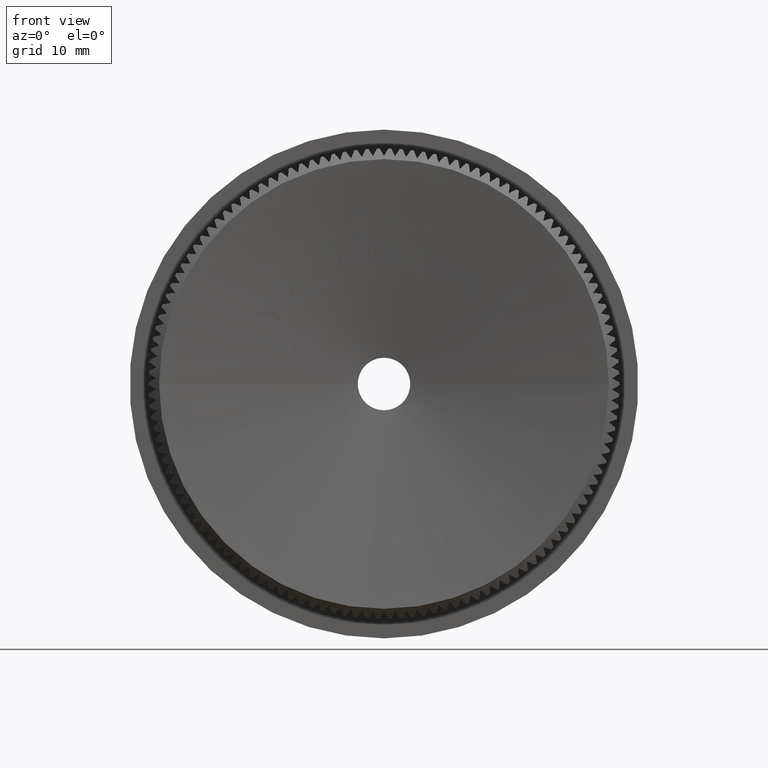
[diagram: clean part render]
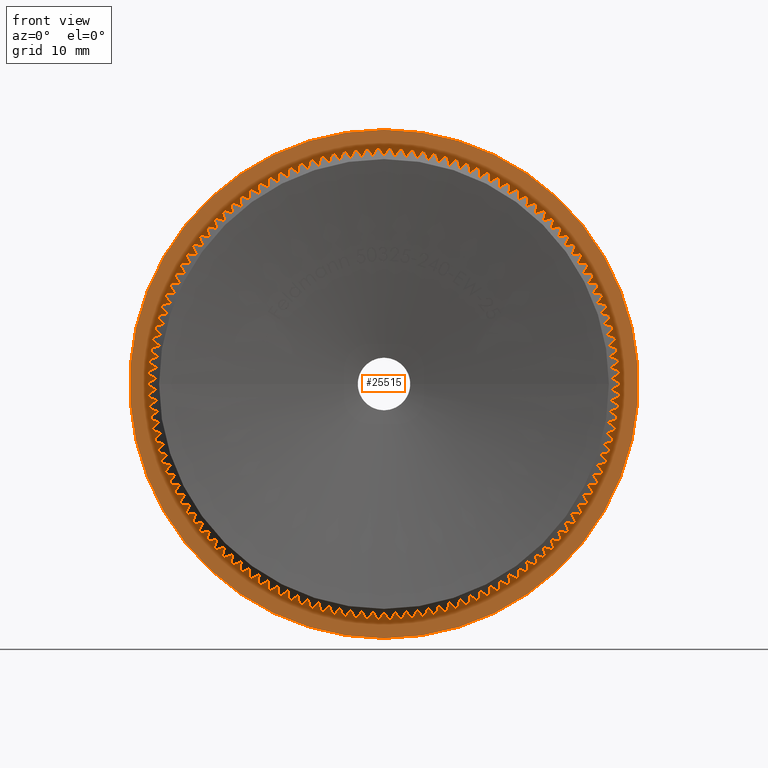
[diagram: same view with one face highlighted and labeled with its STEP entity id]
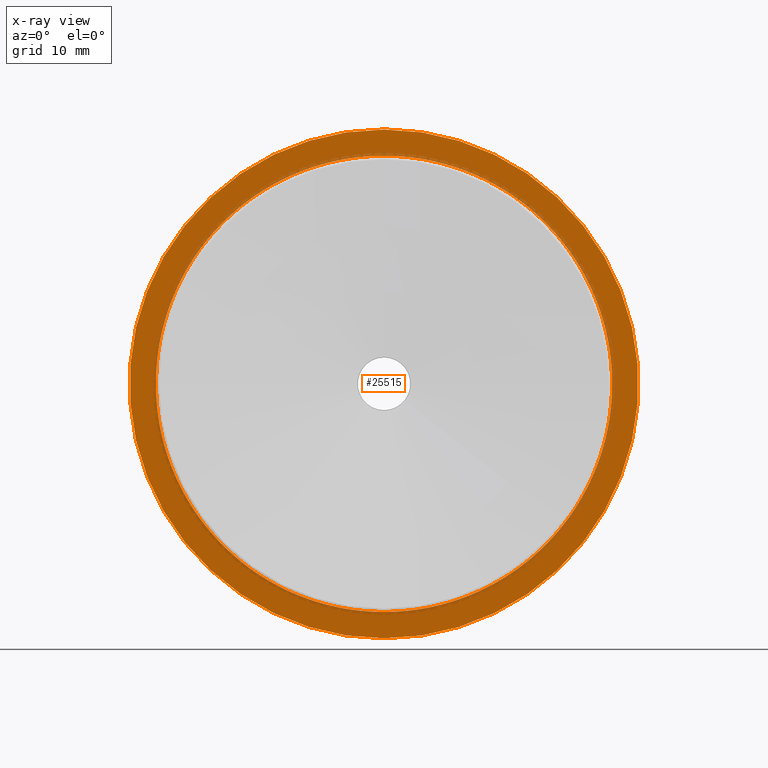
[diagram: x-ray of the same camera — body ghosted, the highlighted face saturated]
A machine part, front view. The second image highlights one B-rep face of the part: STEP entity #25515.
The next image is the same camera in x-ray: the body ghosted, the highlighted face saturated — about 9% of this face is hidden behind the body in this view.
In plain terms, the highlighted planar face has unit normal (0, -1, -0).
Its self-contained STEP definition (entity closure, byte-faithful):
#14 = DIRECTION ( 'NONE',  ( 0.0000000000000000000, 0.0000000000000000000, -1.000000000000000000 ) ) ;
#16 = CARTESIAN_POINT ( 'NONE',  ( 0.0000000000000000000, 8.000000000000001800, 0.0000000000000000000 ) ) ;
#78 = ORIENTED_EDGE ( 'NONE', *, *, #28519, .F. ) ;
#81 = AXIS2_PLACEMENT_3D ( 'NONE', #4886, #12377, #21419 ) ;
#102 = EDGE_CURVE ( 'NONE', #5223, #332, #13640, .T. ) ;
#113 = VERTEX_POINT ( 'NONE', #16850 ) ;
#124 = VERTEX_POINT ( 'NONE', #23982 ) ;
#167 = EDGE_CURVE ( 'NONE', #9776, #26005, #6336, .T. ) ;
#207 = AXIS2_PLACEMENT_3D ( 'NONE', #13216, #22779, #12818 ) ;
#212 = CARTESIAN_POINT ( 'NONE',  ( -1.045984666727230800, 7.999999999999989300, 21.62471771091987800 ) ) ;
#215 = ORIENTED_EDGE ( 'NONE', *, *, #8632, .F. ) ;
#217 = AXIS2_PLACEMENT_3D ( 'NONE', #21415, #11975, #21615 ) ;
#253 = AXIS2_PLACEMENT_3D ( 'NONE', #28379, #16386, #4507 ) ;
#258 = AXIS2_PLACEMENT_3D ( 'NONE', #17427, #1003, #27046 ) ;
#263 = CARTESIAN_POINT ( 'NONE',  ( 0.0000000000000000000, 8.000000000000001800, 0.0000000000000000000 ) ) ;
#269 = ORIENTED_EDGE ( 'NONE', *, *, #13118, .F. ) ;
#276 = CARTESIAN_POINT ( 'NONE',  ( 0.0000000000000000000, 8.000000000000001800, 0.0000000000000000000 ) ) ;
#290 = CARTESIAN_POINT ( 'NONE',  ( 0.0000000000000000000, 8.000000000000001800, 0.0000000000000000000 ) ) ;
#310 = EDGE_CURVE ( 'NONE', #2050, #24903, #11852, .T. ) ;
#332 = VERTEX_POINT ( 'NONE', #13487 ) ;
#386 = CIRCLE ( 'NONE', #23326, 21.65000000000000200 ) ;
#465 = ORIENTED_EDGE ( 'NONE', *, *, #13540, .F. ) ;
#519 = DIRECTION ( 'NONE',  ( 0.0000000000000000000, 0.0000000000000000000, -1.000000000000000000 ) ) ;
#566 = VERTEX_POINT ( 'NONE', #9867 ) ;
#581 = CARTESIAN_POINT ( 'NONE',  ( 21.59312869082079800, 8.000000000000003600, -1.568213423501933600 ) ) ;
#598 = VERTEX_POINT ( 'NONE', #26941 ) ;
#634 = EDGE_CURVE ( 'NONE', #12330, #5698, #27369, .T. ) ;
#668 = EDGE_CURVE ( 'NONE', #24057, #7682, #28867, .T. ) ;
#689 = EDGE_CURVE ( 'NONE', #19763, #6973, #6299, .T. ) ;
#709 = DIRECTION ( 'NONE',  ( -0.0000000000000000000, -1.000000000000000000, -0.0000000000000000000 ) ) ;
#723 = VERTEX_POINT ( 'NONE', #25064 ) ;
#763 = CARTESIAN_POINT ( 'NONE',  ( 0.0000000000000000000, 8.000000000000001800, 0.0000000000000000000 ) ) ;
#796 = AXIS2_PLACEMENT_3D ( 'NONE', #2352, #11524, #16506 ) ;
#819 = VERTEX_POINT ( 'NONE', #23438 ) ;
#843 = AXIS2_PLACEMENT_3D ( 'NONE', #24953, #29282, #17615 ) ;
#897 = CIRCLE ( 'NONE', #16686, 21.65000000000000200 ) ;
#975 = DIRECTION ( 'NONE',  ( -0.0000000000000000000, -1.000000000000000000, -0.0000000000000000000 ) ) ;
#978 = DIRECTION ( 'NONE',  ( -0.0000000000000000000, -1.000000000000000000, -0.0000000000000000000 ) ) ;
#994 = VERTEX_POINT ( 'NONE', #7762 ) ;
#1003 = DIRECTION ( 'NONE',  ( -0.0000000000000000000, -1.000000000000000000, -0.0000000000000000000 ) ) ;
#1010 = CIRCLE ( 'NONE', #8531, 21.65000000000000200 ) ;
#1015 = AXIS2_PLACEMENT_3D ( 'NONE', #25763, #11558, #23786 ) ;
#1033 = EDGE_CURVE ( 'NONE', #566, #3594, #386, .T. ) ;
#1038 = DIRECTION ( 'NONE',  ( -0.0000000000000000000, -1.000000000000000000, -0.0000000000000000000 ) ) ;
#1055 = DIRECTION ( 'NONE',  ( 0.0000000000000000000, 0.0000000000000000000, -1.000000000000000000 ) ) ;
#1112 = EDGE_CURVE ( 'NONE', #26505, #819, #13246, .T. ) ;
#1115 = CIRCLE ( 'NONE', #29633, 21.65000000000000200 ) ;
#1181 = CARTESIAN_POINT ( 'NONE',  ( 1.045984666726928800, 8.000000000000000000, 21.62471771091988900 ) ) ;
#1288 = VERTEX_POINT ( 'NONE', #11816 ) ;
#1291 = CARTESIAN_POINT ( 'NONE',  ( 20.88955572988783200, 7.999999999999989300, 5.687614737999642700 ) ) ;
#1325 = DIRECTION ( 'NONE',  ( -0.0000000000000000000, -1.000000000000000000, -0.0000000000000000000 ) ) ;
#1336 = CIRCLE ( 'NONE', #15801, 21.65000000000000200 ) ;
#1350 = DIRECTION ( 'NONE',  ( -0.0000000000000000000, -1.000000000000000000, -0.0000000000000000000 ) ) ;
#1396 = VERTEX_POINT ( 'NONE', #10045 ) ;
#1478 = DIRECTION ( 'NONE',  ( 0.0000000000000000000, 0.0000000000000000000, -1.000000000000000000 ) ) ;
#1483 = EDGE_CURVE ( 'NONE', #4832, #15321, #1115, .T. ) ;
#1490 = ORIENTED_EDGE ( 'NONE', *, *, #11415, .F. ) ;
#1625 = DIRECTION ( 'NONE',  ( 0.0000000000000000000, 0.0000000000000000000, -1.000000000000000000 ) ) ;
#1671 = CIRCLE ( 'NONE', #4181, 21.65000000000000200 ) ;
#1686 = CARTESIAN_POINT ( 'NONE',  ( 0.0000000000000000000, 8.000000000000001800, 0.0000000000000000000 ) ) ;
#1720 = EDGE_CURVE ( 'NONE', #29438, #4102, #14378, .T. ) ;
#1736 = DIRECTION ( 'NONE',  ( 0.0000000000000000000, 0.0000000000000000000, -1.000000000000000000 ) ) ;
#1807 = DIRECTION ( 'NONE',  ( -0.0000000000000000000, -1.000000000000000000, -0.0000000000000000000 ) ) ;
#1829 = AXIS2_PLACEMENT_3D ( 'NONE', #15210, #7675, #24744 ) ;
#1907 = VERTEX_POINT ( 'NONE', #12291 ) ;
#1909 = DIRECTION ( 'NONE',  ( -0.0000000000000000000, -1.000000000000000000, -0.0000000000000000000 ) ) ;
#1929 = ORIENTED_EDGE ( 'NONE', *, *, #3392, .F. ) ;
#1971 = DIRECTION ( 'NONE',  ( 0.0000000000000000000, 0.0000000000000000000, -1.000000000000000000 ) ) ;
#1974 = AXIS2_PLACEMENT_3D ( 'NONE', #13586, #11021, #13377 ) ;
#1980 = VERTEX_POINT ( 'NONE', #5706 ) ;
#2009 = CARTESIAN_POINT ( 'NONE',  ( -17.81760069659760500, 7.999999999999996400, -12.29860176672960900 ) ) ;
#2033 = DIRECTION ( 'NONE',  ( -0.0000000000000000000, -1.000000000000000000, -0.0000000000000000000 ) ) ;
#2050 = VERTEX_POINT ( 'NONE', #9170 ) ;
#2113 = CIRCLE ( 'NONE', #23407, 21.65000000000000200 ) ;
#2130 = ORIENTED_EDGE ( 'NONE', *, *, #1483, .F. ) ;
#2177 = CARTESIAN_POINT ( 'NONE',  ( 0.0000000000000000000, 8.000000000000001800, 0.0000000000000000000 ) ) ;
#2219 = VERTEX_POINT ( 'NONE', #7329 ) ;
#2228 = VERTEX_POINT ( 'NONE', #212 ) ;
#2274 = AXIS2_PLACEMENT_3D ( 'NONE', #30468, #20905, #13955 ) ;
#2314 = CIRCLE ( 'NONE', #5638, 21.65000000000000200 ) ;
#2352 = CARTESIAN_POINT ( 'NONE',  ( 0.0000000000000000000, 8.000000000000001800, 0.0000000000000000000 ) ) ;
#2371 = CIRCLE ( 'NONE', #26187, 21.65000000000000200 ) ;
#2375 = ORIENTED_EDGE ( 'NONE', *, *, #21951, .F. ) ;
#2389 = ORIENTED_EDGE ( 'NONE', *, *, #18413, .F. ) ;
#2440 = EDGE_CURVE ( 'NONE', #8232, #17706, #7708, .T. ) ;
#2439 = DIRECTION ( 'NONE',  ( 0.0000000000000000000, 0.0000000000000000000, -1.000000000000000000 ) ) ;
#2467 = CARTESIAN_POINT ( 'NONE',  ( 0.0000000000000000000, 8.000000000000001800, 0.0000000000000000000 ) ) ;
#2468 = EDGE_CURVE ( 'NONE', #29979, #10256, #6593, .T. ) ;
#2512 = CIRCLE ( 'NONE', #17001, 21.65000000000000200 ) ;
#2518 = VERTEX_POINT ( 'NONE', #17606 ) ;
#2559 = DIRECTION ( 'NONE',  ( -0.0000000000000000000, -1.000000000000000000, -0.0000000000000000000 ) ) ;
#2584 = AXIS2_PLACEMENT_3D ( 'NONE', #24906, #10731, #6001 ) ;
#2585 = DIRECTION ( 'NONE',  ( 0.0000000000000000000, 0.0000000000000000000, -1.000000000000000000 ) ) ;
#2634 = CARTESIAN_POINT ( 'NONE',  ( 0.0000000000000000000, 8.000000000000001800, 0.0000000000000000000 ) ) ;
#2635 = AXIS2_PLACEMENT_3D ( 'NONE', #28932, #1038, #26766 ) ;
#2636 = CARTESIAN_POINT ( 'NONE',  ( 0.0000000000000000000, 8.000000000000001800, 0.0000000000000000000 ) ) ;
#2661 = EDGE_CURVE ( 'NONE', #124, #3985, #13579, .T. ) ;
#2664 = DIRECTION ( 'NONE',  ( 0.0000000000000000000, 0.0000000000000000000, -1.000000000000000000 ) ) ;
#2691 = CIRCLE ( 'NONE', #11313, 21.65000000000000200 ) ;
#2740 = DIRECTION ( 'NONE',  ( -0.0000000000000000000, -1.000000000000000000, -0.0000000000000000000 ) ) ;
#2754 = EDGE_CURVE ( 'NONE', #28051, #13371, #12837, .T. ) ;
#2774 = EDGE_CURVE ( 'NONE', #24529, #16114, #18820, .T. ) ;
#2835 = CARTESIAN_POINT ( 'NONE',  ( 17.81760069659751300, 8.000000000000003600, 12.29860176672974100 ) ) ;
#2877 = EDGE_CURVE ( 'NONE', #28461, #9683, #6980, .T. ) ;
#2920 = EDGE_CURVE ( 'NONE', #994, #20188, #29473, .T. ) ;
#2921 = DIRECTION ( 'NONE',  ( 0.0000000000000000000, 0.0000000000000000000, -1.000000000000000000 ) ) ;
#3012 = DIRECTION ( 'NONE',  ( -0.0000000000000000000, -1.000000000000000000, -0.0000000000000000000 ) ) ;
#3111 = CIRCLE ( 'NONE', #1829, 21.65000000000000200 ) ;
#3114 = DIRECTION ( 'NONE',  ( 0.0000000000000000000, 0.0000000000000000000, -1.000000000000000000 ) ) ;
#3147 = DIRECTION ( 'NONE',  ( -0.0000000000000000000, -1.000000000000000000, -0.0000000000000000000 ) ) ;
#3172 = ORIENTED_EDGE ( 'NONE', *, *, #13671, .F. ) ;
#3173 = DIRECTION ( 'NONE',  ( -0.0000000000000000000, -1.000000000000000000, -0.0000000000000000000 ) ) ;
#3210 = CARTESIAN_POINT ( 'NONE',  ( 0.0000000000000000000, 8.000000000000001800, 0.0000000000000000000 ) ) ;
#3224 = DIRECTION ( 'NONE',  ( -0.0000000000000000000, -1.000000000000000000, -0.0000000000000000000 ) ) ;
#3235 = CARTESIAN_POINT ( 'NONE',  ( 0.0000000000000000000, 8.000000000000001800, 0.0000000000000000000 ) ) ;
#3241 = EDGE_CURVE ( 'NONE', #28476, #11773, #3268, .T. ) ;
#3267 = ORIENTED_EDGE ( 'NONE', *, *, #4289, .F. ) ;
#3268 = CIRCLE ( 'NONE', #24733, 21.65000000000000200 ) ;
#3375 = CIRCLE ( 'NONE', #10177, 21.65000000000000200 ) ;
#3392 = EDGE_CURVE ( 'NONE', #20304, #12008, #4362, .T. ) ;
#3402 = AXIS2_PLACEMENT_3D ( 'NONE', #6505, #2559, #13914 ) ;
#3408 = DIRECTION ( 'NONE',  ( -0.0000000000000000000, -1.000000000000000000, -0.0000000000000000000 ) ) ;
#3427 = CARTESIAN_POINT ( 'NONE',  ( -20.24310165413919900, 7.999999999999996400, -7.677195804470983400 ) ) ;
#3493 = ORIENTED_EDGE ( 'NONE', *, *, #29925, .F. ) ;
#3566 = CARTESIAN_POINT ( 'NONE',  ( 0.0000000000000000000, 8.000000000000001800, 0.0000000000000000000 ) ) ;
#3570 = ORIENTED_EDGE ( 'NONE', *, *, #3241, .F. ) ;
#3588 = AXIS2_PLACEMENT_3D ( 'NONE', #28682, #6985, #5028 ) ;
#3594 = VERTEX_POINT ( 'NONE', #12668 ) ;
#3626 = CARTESIAN_POINT ( 'NONE',  ( 0.0000000000000000000, 8.000000000000001800, 0.0000000000000000000 ) ) ;
#3638 = ORIENTED_EDGE ( 'NONE', *, *, #30104, .F. ) ;
#3649 = DIRECTION ( 'NONE',  ( 0.0000000000000000000, 0.0000000000000000000, -1.000000000000000000 ) ) ;
#3663 = EDGE_CURVE ( 'NONE', #23074, #2050, #22840, .T. ) ;
#3735 = ORIENTED_EDGE ( 'NONE', *, *, #12390, .F. ) ;
#3766 = AXIS2_PLACEMENT_3D ( 'NONE', #18832, #4464, #19041 ) ;
#3847 = CARTESIAN_POINT ( 'NONE',  ( 14.35660555091302500, 7.999999999999996400, 16.20525769790451400 ) ) ;
#3855 = DIRECTION ( 'NONE',  ( -0.0000000000000000000, -1.000000000000000000, -0.0000000000000000000 ) ) ;
#3863 = EDGE_CURVE ( 'NONE', #25070, #28461, #21009, .T. ) ;
#3903 = CIRCLE ( 'NONE', #28720, 21.65000000000000200 ) ;
#3921 = DIRECTION ( 'NONE',  ( 0.0000000000000000000, 0.0000000000000000000, -1.000000000000000000 ) ) ;
#3935 = AXIS2_PLACEMENT_3D ( 'NONE', #24206, #16551, #10223 ) ;
#3982 = CIRCLE ( 'NONE', #15755, 21.65000000000000200 ) ;
#3983 = AXIS2_PLACEMENT_3D ( 'NONE', #7823, #29007, #10190 ) ;
#3985 = VERTEX_POINT ( 'NONE', #23853 ) ;
#4031 = DIRECTION ( 'NONE',  ( 0.0000000000000000000, 0.0000000000000000000, -1.000000000000000000 ) ) ;
#4068 = EDGE_CURVE ( 'NONE', #14784, #8974, #7669, .T. ) ;
#4094 = CARTESIAN_POINT ( 'NONE',  ( 0.0000000000000000000, 8.000000000000001800, 0.0000000000000000000 ) ) ;
#4102 = VERTEX_POINT ( 'NONE', #7905 ) ;
#4105 = EDGE_CURVE ( 'NONE', #1907, #28020, #4721, .T. ) ;
#4106 = ORIENTED_EDGE ( 'NONE', *, *, #18952, .F. ) ;
#4154 = DIRECTION ( 'NONE',  ( -0.0000000000000000000, -1.000000000000000000, -0.0000000000000000000 ) ) ;
#4163 = CARTESIAN_POINT ( 'NONE',  ( -21.49214712422286100, 8.000000000000000000, -2.609619127527826400 ) ) ;
#4176 = ORIENTED_EDGE ( 'NONE', *, *, #7804, .F. ) ;
#4181 = AXIS2_PLACEMENT_3D ( 'NONE', #290, #25931, #18780 ) ;
#4193 = DIRECTION ( 'NONE',  ( 0.0000000000000000000, 0.0000000000000000000, -1.000000000000000000 ) ) ;
#4215 = AXIS2_PLACEMENT_3D ( 'NONE', #6065, #29999, #23018 ) ;
#4233 = VERTEX_POINT ( 'NONE', #6443 ) ;
#4281 = DIRECTION ( 'NONE',  ( -0.0000000000000000000, -1.000000000000000000, -0.0000000000000000000 ) ) ;
#4289 = EDGE_CURVE ( 'NONE', #22487, #9748, #6170, .T. ) ;
#4323 = VERTEX_POINT ( 'NONE', #5087 ) ;
#4334 = DIRECTION ( 'NONE',  ( 0.0000000000000000000, 0.0000000000000000000, -1.000000000000000000 ) ) ;
#4362 = CIRCLE ( 'NONE', #217, 21.65000000000000200 ) ;
#4368 = CARTESIAN_POINT ( 'NONE',  ( -16.54743534981754700, 7.999999999999992900, -13.96083390573817900 ) ) ;
#4385 = CIRCLE ( 'NONE', #22124, 21.65000000000000200 ) ;
#4390 = CIRCLE ( 'NONE', #25547, 21.65000000000000200 ) ;
#4445 = CIRCLE ( 'NONE', #4824, 21.65000000000000200 ) ;
#4464 = DIRECTION ( 'NONE',  ( -0.0000000000000000000, -1.000000000000000000, -0.0000000000000000000 ) ) ;
#4496 = CARTESIAN_POINT ( 'NONE',  ( 2.089526387799408800, 7.999999999999992900, -21.54892989163708000 ) ) ;
#4501 = CARTESIAN_POINT ( 'NONE',  ( -3.128187923173649100, 7.999999999999992900, 21.42281354811526100 ) ) ;
#4507 = DIRECTION ( 'NONE',  ( 0.0000000000000000000, 0.0000000000000000000, -1.000000000000000000 ) ) ;
#4537 = CARTESIAN_POINT ( 'NONE',  ( 15.12277105763962300, 7.999999999999996400, -15.49271750011009100 ) ) ;
#4584 = DIRECTION ( 'NONE',  ( 0.0000000000000000000, 0.0000000000000000000, -1.000000000000000000 ) ) ;
#4586 = AXIS2_PLACEMENT_3D ( 'NONE', #26499, #12311, #12603 ) ;
#4618 = DIRECTION ( 'NONE',  ( -0.0000000000000000000, -1.000000000000000000, -0.0000000000000000000 ) ) ;
#4629 = CIRCLE ( 'NONE', #26767, 21.65000000000000200 ) ;
#4657 = DIRECTION ( 'NONE',  ( 0.0000000000000000000, 0.0000000000000000000, -1.000000000000000000 ) ) ;
#4706 = DIRECTION ( 'NONE',  ( 0.0000000000000000000, 0.0000000000000000000, -1.000000000000000000 ) ) ;
#4721 = CIRCLE ( 'NONE', #14439, 21.65000000000000200 ) ;
#4757 = CIRCLE ( 'NONE', #20014, 21.65000000000000200 ) ;
#4776 = CIRCLE ( 'NONE', #14579, 21.65000000000000200 ) ;
#4783 = CARTESIAN_POINT ( 'NONE',  ( 7.185805020232804100, 8.000000000000000000, -20.42270075703008200 ) ) ;
#4796 = CARTESIAN_POINT ( 'NONE',  ( 0.0000000000000000000, 8.000000000000001800, 0.0000000000000000000 ) ) ;
#4824 = AXIS2_PLACEMENT_3D ( 'NONE', #11984, #23898, #9602 ) ;
#4832 = VERTEX_POINT ( 'NONE', #11838 ) ;
#4858 = ORIENTED_EDGE ( 'NONE', *, *, #12727, .F. ) ;
#4886 = CARTESIAN_POINT ( 'NONE',  ( 0.0000000000000000000, 8.000000000000001800, 0.0000000000000000000 ) ) ;
#4920 = DIRECTION ( 'NONE',  ( 0.0000000000000000000, 0.0000000000000000000, -1.000000000000000000 ) ) ;
#4952 = ORIENTED_EDGE ( 'NONE', *, *, #16247, .F. ) ;
#4966 = VERTEX_POINT ( 'NONE', #30302 ) ;
#4979 = EDGE_CURVE ( 'NONE', #18148, #21625, #26132, .T. ) ;
#5008 = AXIS2_PLACEMENT_3D ( 'NONE', #24605, #3012, #14863 ) ;
#5013 = EDGE_CURVE ( 'NONE', #5211, #29979, #7275, .T. ) ;
#5028 = DIRECTION ( 'NONE',  ( 0.0000000000000000000, 0.0000000000000000000, -1.000000000000000000 ) ) ;
#5032 = DIRECTION ( 'NONE',  ( -0.0000000000000000000, -1.000000000000000000, -0.0000000000000000000 ) ) ;
#5042 = ORIENTED_EDGE ( 'NONE', *, *, #23990, .F. ) ;
#5087 = CARTESIAN_POINT ( 'NONE',  ( 0.0000000000000000000, 8.000000000000000000, -24.14999999999999900 ) ) ;
#5092 = DIRECTION ( 'NONE',  ( -0.0000000000000000000, -1.000000000000000000, -0.0000000000000000000 ) ) ;
#5109 = ORIENTED_EDGE ( 'NONE', *, *, #23488, .F. ) ;
#5123 = DIRECTION ( 'NONE',  ( 0.0000000000000000000, 0.0000000000000000000, -1.000000000000000000 ) ) ;
#5162 = EDGE_CURVE ( 'NONE', #819, #29438, #21683, .T. ) ;
#5211 = VERTEX_POINT ( 'NONE', #26069 ) ;
#5213 = EDGE_CURVE ( 'NONE', #12460, #28868, #17966, .T. ) ;
#5223 = VERTEX_POINT ( 'NONE', #4783 ) ;
#5226 = FACE_BOUND ( 'NONE', #10397, .T. ) ;
#5267 = DIRECTION ( 'NONE',  ( 0.0000000000000000000, 0.0000000000000000000, -1.000000000000000000 ) ) ;
#5309 = VERTEX_POINT ( 'NONE', #7544 ) ;
#5349 = CARTESIAN_POINT ( 'NONE',  ( 16.54743534981745500, 8.000000000000003600, 13.96083390573828700 ) ) ;
#5358 = CARTESIAN_POINT ( 'NONE',  ( -21.13994935665372700, 7.999999999999996400, -4.671727860023085400 ) ) ;
#5380 = CARTESIAN_POINT ( 'NONE',  ( 0.0000000000000000000, 8.000000000000001800, 0.0000000000000000000 ) ) ;
#5405 = ORIENTED_EDGE ( 'NONE', *, *, #13348, .F. ) ;
#5410 = DIRECTION ( 'NONE',  ( 0.0000000000000000000, 0.0000000000000000000, -1.000000000000000000 ) ) ;
#5415 = EDGE_CURVE ( 'NONE', #27000, #24057, #20194, .T. ) ;
#5428 = EDGE_CURVE ( 'NONE', #12260, #5211, #26492, .T. ) ;
#5478 = CARTESIAN_POINT ( 'NONE',  ( -8.164103322552021400, 7.999999999999986700, -20.05168114993591600 ) ) ;
#5499 = PLANE ( 'NONE',  #3935 ) ;
#5518 = EDGE_CURVE ( 'NONE', #723, #21121, #21652, .T. ) ;
#5619 = DIRECTION ( 'NONE',  ( 0.0000000000000000000, 0.0000000000000000000, -1.000000000000000000 ) ) ;
#5638 = AXIS2_PLACEMENT_3D ( 'NONE', #8126, #24678, #27056 ) ;
#5646 = VERTEX_POINT ( 'NONE', #8425 ) ;
#5698 = VERTEX_POINT ( 'NONE', #27654 ) ;
#5706 = CARTESIAN_POINT ( 'NONE',  ( 21.34096965217020500, 7.999999999999996400, 3.644929945163618800 ) ) ;
#5731 = CARTESIAN_POINT ( 'NONE',  ( 0.0000000000000000000, 8.000000000000001800, 0.0000000000000000000 ) ) ;
#5732 = CIRCLE ( 'NONE', #843, 21.65000000000000200 ) ;
#5765 = DIRECTION ( 'NONE',  ( -0.0000000000000000000, -1.000000000000000000, -0.0000000000000000000 ) ) ;
#5766 = AXIS2_PLACEMENT_3D ( 'NONE', #18888, #4618, #9339 ) ;
#5795 = DIRECTION ( 'NONE',  ( 0.0000000000000000000, 0.0000000000000000000, -1.000000000000000000 ) ) ;
#5801 = DIRECTION ( 'NONE',  ( 0.0000000000000000000, 0.0000000000000000000, -1.000000000000000000 ) ) ;
#5849 = VERTEX_POINT ( 'NONE', #10310 ) ;
#5886 = DIRECTION ( 'NONE',  ( 0.0000000000000000000, 0.0000000000000000000, -1.000000000000000000 ) ) ;
#5908 = CARTESIAN_POINT ( 'NONE',  ( 0.0000000000000000000, 8.000000000000001800, 0.0000000000000000000 ) ) ;
#5947 = DIRECTION ( 'NONE',  ( -0.0000000000000000000, -1.000000000000000000, -0.0000000000000000000 ) ) ;
#6001 = DIRECTION ( 'NONE',  ( 0.0000000000000000000, 0.0000000000000000000, -1.000000000000000000 ) ) ;
#6065 = CARTESIAN_POINT ( 'NONE',  ( 0.0000000000000000000, 8.000000000000001800, 0.0000000000000000000 ) ) ;
#6076 = ORIENTED_EDGE ( 'NONE', *, *, #21601, .F. ) ;
#6081 = CARTESIAN_POINT ( 'NONE',  ( 0.0000000000000000000, 8.000000000000001800, 0.0000000000000000000 ) ) ;
#6127 = AXIS2_PLACEMENT_3D ( 'NONE', #23381, #26477, #9806 ) ;
#6170 = CIRCLE ( 'NONE', #28129, 21.65000000000000200 ) ;
#6178 = CARTESIAN_POINT ( 'NONE',  ( 10.06125667474774100, 8.000000000000000000, -19.17012295539191800 ) ) ;
#6193 = VERTEX_POINT ( 'NONE', #23652 ) ;
#6299 = CIRCLE ( 'NONE', #13990, 21.65000000000000200 ) ;
#6302 = CARTESIAN_POINT ( 'NONE',  ( 7.185805020232377800, 7.999999999999983100, 20.42270075703023800 ) ) ;
#6336 = CIRCLE ( 'NONE', #24687, 21.65000000000000200 ) ;
#6353 = CARTESIAN_POINT ( 'NONE',  ( 0.0000000000000000000, 8.000000000000001800, 0.0000000000000000000 ) ) ;
#6376 = VERTEX_POINT ( 'NONE', #19809 ) ;
#6390 = EDGE_CURVE ( 'NONE', #18954, #30048, #2371, .T. ) ;
#6419 = DIRECTION ( 'NONE',  ( 0.0000000000000000000, 0.0000000000000000000, -1.000000000000000000 ) ) ;
#6439 = ORIENTED_EDGE ( 'NONE', *, *, #13306, .F. ) ;
#6443 = CARTESIAN_POINT ( 'NONE',  ( -9.123333983275145400, 7.999999999999983100, -19.63382991241436700 ) ) ;
#6501 = DIRECTION ( 'NONE',  ( 0.0000000000000000000, 0.0000000000000000000, -1.000000000000000000 ) ) ;
#6505 = CARTESIAN_POINT ( 'NONE',  ( 0.0000000000000000000, 8.000000000000001800, 0.0000000000000000000 ) ) ;
#6530 = DIRECTION ( 'NONE',  ( 0.0000000000000000000, 0.0000000000000000000, -1.000000000000000000 ) ) ;
#6538 = DIRECTION ( 'NONE',  ( -0.0000000000000000000, -1.000000000000000000, -0.0000000000000000000 ) ) ;
#6573 = VERTEX_POINT ( 'NONE', #4496 ) ;
#6577 = AXIS2_PLACEMENT_3D ( 'NONE', #22882, #8689, #16555 ) ;
#6593 = CIRCLE ( 'NONE', #11445, 21.65000000000000200 ) ;
#6594 = ORIENTED_EDGE ( 'NONE', *, *, #2877, .F. ) ;
#6599 = ORIENTED_EDGE ( 'NONE', *, *, #5415, .F. ) ;
#6626 = CARTESIAN_POINT ( 'NONE',  ( -21.59312869082079100, 7.999999999999992900, 1.568213423502084400 ) ) ;
#6630 = AXIS2_PLACEMENT_3D ( 'NONE', #18090, #15796, #6419 ) ;
#6646 = DIRECTION ( 'NONE',  ( -0.0000000000000000000, -1.000000000000000000, -0.0000000000000000000 ) ) ;
#6653 = EDGE_CURVE ( 'NONE', #20356, #4966, #9367, .T. ) ;
#6718 = AXIS2_PLACEMENT_3D ( 'NONE', #29230, #24706, #5795 ) ;
#6724 = CARTESIAN_POINT ( 'NONE',  ( 3.128187923173351600, 7.999999999999986700, 21.42281354811530400 ) ) ;
#6725 = VERTEX_POINT ( 'NONE', #14591 ) ;
#6738 = EDGE_CURVE ( 'NONE', #28020, #21213, #3111, .T. ) ;
#6757 = AXIS2_PLACEMENT_3D ( 'NONE', #21695, #16943, #7534 ) ;
#6765 = ORIENTED_EDGE ( 'NONE', *, *, #15793, .F. ) ;
#6823 = ORIENTED_EDGE ( 'NONE', *, *, #15745, .F. ) ;
#6844 = DIRECTION ( 'NONE',  ( 0.0000000000000000000, 0.0000000000000000000, -1.000000000000000000 ) ) ;
#6857 = CARTESIAN_POINT ( 'NONE',  ( -2.089526387799107700, 7.999999999999996400, -21.54892989163710800 ) ) ;
#6906 = CIRCLE ( 'NONE', #27165, 21.65000000000000200 ) ;
#6957 = DIRECTION ( 'NONE',  ( -0.0000000000000000000, -1.000000000000000000, -0.0000000000000000000 ) ) ;
#6973 = VERTEX_POINT ( 'NONE', #2009 ) ;
#6980 = CIRCLE ( 'NONE', #16225, 21.65000000000000200 ) ;
#6981 = CARTESIAN_POINT ( 'NONE',  ( 0.0000000000000000000, 8.000000000000001800, 0.0000000000000000000 ) ) ;
#6985 = DIRECTION ( 'NONE',  ( -0.0000000000000000000, -1.000000000000000000, -0.0000000000000000000 ) ) ;
#6999 = CARTESIAN_POINT ( 'NONE',  ( -18.39098079538088000, 7.999999999999996400, -11.42341128489786000 ) ) ;
#7063 = VERTEX_POINT ( 'NONE', #26084 ) ;
#7148 = VERTEX_POINT ( 'NONE', #19341 ) ;
#7173 = VERTEX_POINT ( 'NONE', #17069 ) ;
#7240 = EDGE_CURVE ( 'NONE', #9229, #1396, #13781, .T. ) ;
#7243 = CIRCLE ( 'NONE', #23378, 21.65000000000000200 ) ;
#7275 = CIRCLE ( 'NONE', #3588, 21.65000000000000200 ) ;
#7284 = EDGE_CURVE ( 'NONE', #10513, #25938, #23077, .T. ) ;
#7291 = CIRCLE ( 'NONE', #19171, 21.65000000000000200 ) ;
#7329 = CARTESIAN_POINT ( 'NONE',  ( -10.06125667474761100, 7.999999999999996400, 19.17012295539198500 ) ) ;
#7393 = DIRECTION ( 'NONE',  ( 0.0000000000000000000, 0.0000000000000000000, -1.000000000000000000 ) ) ;
#7441 = CIRCLE ( 'NONE', #14708, 21.65000000000000200 ) ;
#7442 = EDGE_CURVE ( 'NONE', #17706, #994, #9337, .T. ) ;
#7480 = VERTEX_POINT ( 'NONE', #28310 ) ;
#7491 = ORIENTED_EDGE ( 'NONE', *, *, #668, .F. ) ;
#7497 = CARTESIAN_POINT ( 'NONE',  ( 11.86447078422838400, 7.999999999999996400, 18.10957848792156000 ) ) ;
#7510 = DIRECTION ( 'NONE',  ( -0.0000000000000000000, -1.000000000000000000, -0.0000000000000000000 ) ) ;
#7532 = AXIS2_PLACEMENT_3D ( 'NONE', #5731, #3147, #7981 ) ;
#7534 = DIRECTION ( 'NONE',  ( 0.0000000000000000000, 0.0000000000000000000, -1.000000000000000000 ) ) ;
#7544 = CARTESIAN_POINT ( 'NONE',  ( 5.181184131825347100, 7.999999999999996400, 21.02089034727409700 ) ) ;
#7580 = DIRECTION ( 'NONE',  ( -0.0000000000000000000, -1.000000000000000000, -0.0000000000000000000 ) ) ;
#7606 = AXIS2_PLACEMENT_3D ( 'NONE', #5908, #22547, #1055 ) ;
#7645 = CARTESIAN_POINT ( 'NONE',  ( 0.0000000000000000000, 8.000000000000001800, 0.0000000000000000000 ) ) ;
#7657 = CARTESIAN_POINT ( 'NONE',  ( 3.128187923173800600, 7.999999999999986700, -21.42281354811524000 ) ) ;
#7669 = CIRCLE ( 'NONE', #24553, 21.65000000000000200 ) ;
#7675 = DIRECTION ( 'NONE',  ( -0.0000000000000000000, -1.000000000000000000, -0.0000000000000000000 ) ) ;
#7682 = VERTEX_POINT ( 'NONE', #5358 ) ;
#7687 = DIRECTION ( 'NONE',  ( 0.0000000000000000000, 0.0000000000000000000, -1.000000000000000000 ) ) ;
#7708 = CIRCLE ( 'NONE', #20581, 21.65000000000000200 ) ;
#7737 = DIRECTION ( 'NONE',  ( -0.0000000000000000000, -1.000000000000000000, -0.0000000000000000000 ) ) ;
#7762 = CARTESIAN_POINT ( 'NONE',  ( 20.59037357779000000, 7.999999999999996400, 6.690217928217846200 ) ) ;
#7789 = AXIS2_PLACEMENT_3D ( 'NONE', #19415, #28916, #14746 ) ;
#7804 = EDGE_CURVE ( 'NONE', #4966, #22393, #30385, .T. ) ;
#7812 = CARTESIAN_POINT ( 'NONE',  ( 0.0000000000000000000, 8.000000000000001800, 0.0000000000000000000 ) ) ;
#7815 = EDGE_CURVE ( 'NONE', #6725, #6573, #8226, .T. ) ;
#7820 = ORIENTED_EDGE ( 'NONE', *, *, #3663, .F. ) ;
#7823 = CARTESIAN_POINT ( 'NONE',  ( 0.0000000000000000000, 8.000000000000001800, 0.0000000000000000000 ) ) ;
#7825 = EDGE_CURVE ( 'NONE', #20188, #21526, #13381, .T. ) ;
#7861 = DIRECTION ( 'NONE',  ( -0.0000000000000000000, -1.000000000000000000, -0.0000000000000000000 ) ) ;
#7905 = CARTESIAN_POINT ( 'NONE',  ( -10.97568083506412300, 7.999999999999992900, -18.66164328795313700 ) ) ;
#7938 = DIRECTION ( 'NONE',  ( 0.0000000000000000000, 0.0000000000000000000, -1.000000000000000000 ) ) ;
#7981 = DIRECTION ( 'NONE',  ( 0.0000000000000000000, 0.0000000000000000000, -1.000000000000000000 ) ) ;
#7982 = CARTESIAN_POINT ( 'NONE',  ( 0.0000000000000000000, 8.000000000000001800, 0.0000000000000000000 ) ) ;
#8011 = CARTESIAN_POINT ( 'NONE',  ( -14.35660555091324400, 7.999999999999996400, 16.20525769790431900 ) ) ;
#8039 = VERTEX_POINT ( 'NONE', #6857 ) ;
#8076 = CIRCLE ( 'NONE', #18960, 21.65000000000000200 ) ;
#8086 = CARTESIAN_POINT ( 'NONE',  ( -15.85361663184182900, 7.999999999999989300, 14.74399334273413100 ) ) ;
#8117 = DIRECTION ( 'NONE',  ( 0.0000000000000000000, 0.0000000000000000000, -1.000000000000000000 ) ) ;
#8126 = CARTESIAN_POINT ( 'NONE',  ( 0.0000000000000000000, 8.000000000000001800, 0.0000000000000000000 ) ) ;
#8154 = CARTESIAN_POINT ( 'NONE',  ( -1.045984666727080500, 7.999999999999989300, -21.62471771091988500 ) ) ;
#8166 = CARTESIAN_POINT ( 'NONE',  ( 8.164103322551879300, 8.000000000000003600, 20.05168114993597000 ) ) ;
#8226 = CIRCLE ( 'NONE', #4586, 21.65000000000000200 ) ;
#8232 = VERTEX_POINT ( 'NONE', #16768 ) ;
#8244 = CARTESIAN_POINT ( 'NONE',  ( 0.0000000000000000000, 8.000000000000001800, 0.0000000000000000000 ) ) ;
#8289 = DIRECTION ( 'NONE',  ( -0.0000000000000000000, -1.000000000000000000, -0.0000000000000000000 ) ) ;
#8314 = DIRECTION ( 'NONE',  ( 0.0000000000000000000, 0.0000000000000000000, -1.000000000000000000 ) ) ;
#8351 = DIRECTION ( 'NONE',  ( 0.0000000000000000000, 0.0000000000000000000, -1.000000000000000000 ) ) ;
#8379 = DIRECTION ( 'NONE',  ( -0.0000000000000000000, -1.000000000000000000, -0.0000000000000000000 ) ) ;
#8389 = EDGE_CURVE ( 'NONE', #4323, #7480, #28199, .T. ) ;
#8425 = CARTESIAN_POINT ( 'NONE',  ( -20.88955572988790600, 8.000000000000000000, 5.687614737999344200 ) ) ;
#8441 = ORIENTED_EDGE ( 'NONE', *, *, #4979, .F. ) ;
#8453 = CARTESIAN_POINT ( 'NONE',  ( -18.39098079538095800, 8.000000000000000000, 11.42341128489773500 ) ) ;
#8496 = DIRECTION ( 'NONE',  ( 0.0000000000000000000, 0.0000000000000000000, -1.000000000000000000 ) ) ;
#8531 = AXIS2_PLACEMENT_3D ( 'NONE', #19482, #21559, #7393 ) ;
#8632 = EDGE_CURVE ( 'NONE', #7148, #6376, #23757, .T. ) ;
#8652 = ORIENTED_EDGE ( 'NONE', *, *, #7284, .F. ) ;
#8689 = DIRECTION ( 'NONE',  ( -0.0000000000000000000, -1.000000000000000000, -0.0000000000000000000 ) ) ;
#8746 = CARTESIAN_POINT ( 'NONE',  ( 0.0000000000000000000, 8.000000000000001800, 0.0000000000000000000 ) ) ;
#8747 = EDGE_CURVE ( 'NONE', #21625, #17265, #25233, .T. ) ;
#8748 = CARTESIAN_POINT ( 'NONE',  ( 0.0000000000000000000, 8.000000000000001800, 0.0000000000000000000 ) ) ;
#8772 = ORIENTED_EDGE ( 'NONE', *, *, #28919, .F. ) ;
#8792 = CARTESIAN_POINT ( 'NONE',  ( 21.64367850483618800, 7.999999999999986700, -0.5231450843620391000 ) ) ;
#8793 = VERTEX_POINT ( 'NONE', #1181 ) ;
#8896 = EDGE_CURVE ( 'NONE', #21048, #12256, #17811, .T. ) ;
#8898 = CARTESIAN_POINT ( 'NONE',  ( 19.40764319245187500, 7.999999999999996400, 9.595096962223804500 ) ) ;
#8974 = VERTEX_POINT ( 'NONE', #4368 ) ;
#8978 = DIRECTION ( 'NONE',  ( -0.0000000000000000000, -1.000000000000000000, -0.0000000000000000000 ) ) ;
#8996 = VERTEX_POINT ( 'NONE', #19132 ) ;
#9018 = ORIENTED_EDGE ( 'NONE', *, *, #12488, .F. ) ;
#9103 = DIRECTION ( 'NONE',  ( 0.0000000000000000000, 0.0000000000000000000, -1.000000000000000000 ) ) ;
#9116 = CARTESIAN_POINT ( 'NONE',  ( 0.0000000000000000000, 8.000000000000001800, 0.0000000000000000000 ) ) ;
#9139 = EDGE_CURVE ( 'NONE', #4102, #7173, #18926, .T. ) ;
#9143 = VERTEX_POINT ( 'NONE', #8154 ) ;
#9147 = CIRCLE ( 'NONE', #18118, 21.65000000000000200 ) ;
#9170 = CARTESIAN_POINT ( 'NONE',  ( 13.55690952670463500, 7.999999999999996400, -16.87994976546865200 ) ) ;
#9171 = CIRCLE ( 'NONE', #12251, 21.65000000000000200 ) ;
#9189 = ORIENTED_EDGE ( 'NONE', *, *, #12191, .F. ) ;
#9229 = VERTEX_POINT ( 'NONE', #6302 ) ;
#9271 = ORIENTED_EDGE ( 'NONE', *, *, #26850, .F. ) ;
#9286 = EDGE_CURVE ( 'NONE', #17920, #18954, #25202, .T. ) ;
#9328 = DIRECTION ( 'NONE',  ( -0.0000000000000000000, -1.000000000000000000, -0.0000000000000000000 ) ) ;
#9337 = CIRCLE ( 'NONE', #27173, 21.65000000000000200 ) ;
#9339 = DIRECTION ( 'NONE',  ( 0.0000000000000000000, 0.0000000000000000000, -1.000000000000000000 ) ) ;
#9359 = CARTESIAN_POINT ( 'NONE',  ( 9.123333983275408300, 8.000000000000003600, -19.63382991241423900 ) ) ;
#9362 = EDGE_CURVE ( 'NONE', #10939, #11342, #12595, .T. ) ;
#9367 = CIRCLE ( 'NONE', #11488, 21.65000000000000200 ) ;
#9372 = CARTESIAN_POINT ( 'NONE',  ( -4.159543430707796800, 7.999999999999989300, 21.24666323091830500 ) ) ;
#9394 = ORIENTED_EDGE ( 'NONE', *, *, #14573, .F. ) ;
#9495 = CARTESIAN_POINT ( 'NONE',  ( -10.97568083506425500, 8.000000000000000000, 18.66164328795305500 ) ) ;
#9533 = CARTESIAN_POINT ( 'NONE',  ( -16.54743534981764700, 7.999999999999996400, 13.96083390573806300 ) ) ;
#9564 = EDGE_CURVE ( 'NONE', #15321, #598, #14802, .T. ) ;
#9565 = CIRCLE ( 'NONE', #12514, 21.65000000000000200 ) ;
#9581 = AXIS2_PLACEMENT_3D ( 'NONE', #4094, #2033, #4193 ) ;
#9602 = DIRECTION ( 'NONE',  ( 0.0000000000000000000, 0.0000000000000000000, -1.000000000000000000 ) ) ;
#9683 = VERTEX_POINT ( 'NONE', #15130 ) ;
#9748 = VERTEX_POINT ( 'NONE', #20538 ) ;
#9756 = CIRCLE ( 'NONE', #13463, 21.65000000000000200 ) ;
#9776 = VERTEX_POINT ( 'NONE', #10786 ) ;
#9786 = ORIENTED_EDGE ( 'NONE', *, *, #23818, .F. ) ;
#9806 = DIRECTION ( 'NONE',  ( 0.0000000000000000000, 0.0000000000000000000, -1.000000000000000000 ) ) ;
#9830 = DIRECTION ( 'NONE',  ( 0.0000000000000000000, 0.0000000000000000000, -1.000000000000000000 ) ) ;
#9859 = CARTESIAN_POINT ( 'NONE',  ( -21.64367850483618100, 7.999999999999996400, 0.5231450843621899800 ) ) ;
#9866 = CIRCLE ( 'NONE', #24521, 21.65000000000000200 ) ;
#9867 = CARTESIAN_POINT ( 'NONE',  ( -20.24310165413925600, 7.999999999999992900, 7.677195804470844800 ) ) ;
#9935 = DIRECTION ( 'NONE',  ( -0.0000000000000000000, -1.000000000000000000, -0.0000000000000000000 ) ) ;
#9934 = CARTESIAN_POINT ( 'NONE',  ( 0.0000000000000000000, 8.000000000000001800, 0.0000000000000000000 ) ) ;
#9960 = CIRCLE ( 'NONE', #207, 21.65000000000000200 ) ;
#9963 = CARTESIAN_POINT ( 'NONE',  ( 12.72555071213183100, 7.999999999999996400, 17.51521792821776900 ) ) ;
#10045 = CARTESIAN_POINT ( 'NONE',  ( 6.190723937331350500, 8.000000000000000000, 20.74602220021353100 ) ) ;
#10052 = ORIENTED_EDGE ( 'NONE', *, *, #21098, .F. ) ;
#10055 = EDGE_CURVE ( 'NONE', #2518, #23396, #7441, .T. ) ;
#10075 = DIRECTION ( 'NONE',  ( -0.0000000000000000000, -1.000000000000000000, -0.0000000000000000000 ) ) ;
#10098 = DIRECTION ( 'NONE',  ( 0.0000000000000000000, 0.0000000000000000000, -1.000000000000000000 ) ) ;
#10114 = CARTESIAN_POINT ( 'NONE',  ( 18.39098079538103300, 8.000000000000003600, -11.42341128489761100 ) ) ;
#10177 = AXIS2_PLACEMENT_3D ( 'NONE', #13840, #28234, #6844 ) ;
#10186 = ORIENTED_EDGE ( 'NONE', *, *, #1720, .F. ) ;
#10189 = ORIENTED_EDGE ( 'NONE', *, *, #7442, .F. ) ;
#10190 = DIRECTION ( 'NONE',  ( 0.0000000000000000000, 0.0000000000000000000, -1.000000000000000000 ) ) ;
#10220 = CARTESIAN_POINT ( 'NONE',  ( 0.0000000000000000000, 8.000000000000001800, 0.0000000000000000000 ) ) ;
#10223 = DIRECTION ( 'NONE',  ( 0.0000000000000000000, 0.0000000000000000000, -1.000000000000000000 ) ) ;
#10256 = VERTEX_POINT ( 'NONE', #29021 ) ;
#10264 = ORIENTED_EDGE ( 'NONE', *, *, #18686, .F. ) ;
#10278 = CIRCLE ( 'NONE', #28625, 21.65000000000000200 ) ;
#10310 = CARTESIAN_POINT ( 'NONE',  ( 0.0000000000000000000, 8.000000000000000000, -21.65000000000000200 ) ) ;
#10344 = ORIENTED_EDGE ( 'NONE', *, *, #2468, .F. ) ;
#10362 = VERTEX_POINT ( 'NONE', #16199 ) ;
#10385 = ORIENTED_EDGE ( 'NONE', *, *, #2440, .F. ) ;
#10393 = AXIS2_PLACEMENT_3D ( 'NONE', #21493, #10075, #519 ) ;
#10397 = EDGE_LOOP ( 'NONE', ( #3493, #14283, #8772, #11705, #22307, #22041, #10709, #19018, #6823, #3638, #15613, #20223, #21434, #8652, #14682, #13730, #28529, #28375, #21662, #4176, #11503, #24167, #16616, #12465, #9189, #25690, #27564, #10189, #10385, #21978, #11364, #3570, #1490, #29499, #1929, #3735, #11593, #4858, #27155, #9786, #25291, #27362, #11536, #18477, #8441, #9394, #21243, #25098, #18644, #6765, #10676, #18132, #7820, #28865, #28674, #6594, #15807, #29700, #25037, #20114, #13295, #12045, #11098, #24313, #17218, #15460, #14286, #11326, #29912, #78, #6076, #25085, #2130, #9271, #2389, #11259, #18610, #10186, #29476, #22753, #21017, #10264, #12934, #9018, #13784, #5109, #26661, #5405, #29289, #28119, #5042, #27770, #4106, #14077, #7491, #6599, #15625, #15953, #20817, #10879, #27164, #16472, #14262, #30383, #16292, #23708, #465, #30092, #4952, #21035, #18226, #30604, #2375, #21659, #12122, #3267, #13712, #269, #215, #6439, #23389, #30201, #3172, #10344, #21540, #14514, #30461, #29708, #14285, #10052 ) ) ;
#10445 = AXIS2_PLACEMENT_3D ( 'NONE', #27428, #24751, #10567 ) ;
#10513 = VERTEX_POINT ( 'NONE', #9963 ) ;
#10567 = DIRECTION ( 'NONE',  ( 0.0000000000000000000, 0.0000000000000000000, -1.000000000000000000 ) ) ;
#10601 = EDGE_CURVE ( 'NONE', #6193, #27126, #15904, .T. ) ;
#10676 = ORIENTED_EDGE ( 'NONE', *, *, #23911, .F. ) ;
#10702 = EDGE_CURVE ( 'NONE', #16154, #23074, #4445, .T. ) ;
#10709 = ORIENTED_EDGE ( 'NONE', *, *, #24164, .F. ) ;
#10731 = DIRECTION ( 'NONE',  ( -0.0000000000000000000, -1.000000000000000000, -0.0000000000000000000 ) ) ;
#10752 = DIRECTION ( 'NONE',  ( 0.0000000000000000000, 0.0000000000000000000, -1.000000000000000000 ) ) ;
#10786 = CARTESIAN_POINT ( 'NONE',  ( 4.159543430707946900, 7.999999999999996400, -21.24666323091827300 ) ) ;
#10821 = DIRECTION ( 'NONE',  ( 0.0000000000000000000, 0.0000000000000000000, -1.000000000000000000 ) ) ;
#10863 = DIRECTION ( 'NONE',  ( 0.0000000000000000000, 0.0000000000000000000, -1.000000000000000000 ) ) ;
#10879 = ORIENTED_EDGE ( 'NONE', *, *, #6738, .F. ) ;
#10922 = CARTESIAN_POINT ( 'NONE',  ( 0.0000000000000000000, 8.000000000000001800, 0.0000000000000000000 ) ) ;
#10939 = VERTEX_POINT ( 'NONE', #23346 ) ;
#11021 = DIRECTION ( 'NONE',  ( -0.0000000000000000000, -1.000000000000000000, -0.0000000000000000000 ) ) ;
#11025 = CIRCLE ( 'NONE', #13564, 21.65000000000000200 ) ;
#11098 = ORIENTED_EDGE ( 'NONE', *, *, #29344, .F. ) ;
#11123 = DIRECTION ( 'NONE',  ( 0.0000000000000000000, 0.0000000000000000000, -1.000000000000000000 ) ) ;
#11145 = DIRECTION ( 'NONE',  ( -0.0000000000000000000, -1.000000000000000000, -0.0000000000000000000 ) ) ;
#11210 = CARTESIAN_POINT ( 'NONE',  ( 21.59312869082077000, 8.000000000000000000, 1.568213423502385700 ) ) ;
#11225 = CARTESIAN_POINT ( 'NONE',  ( -21.13994935665375500, 8.000000000000000000, 4.671727860022942400 ) ) ;
#11256 = CARTESIAN_POINT ( 'NONE',  ( 12.72555071213218800, 7.999999999999996400, -17.51521792821751000 ) ) ;
#11259 = ORIENTED_EDGE ( 'NONE', *, *, #23624, .F. ) ;
#11313 = AXIS2_PLACEMENT_3D ( 'NONE', #2467, #11948, #2664 ) ;
#11326 = ORIENTED_EDGE ( 'NONE', *, *, #19822, .F. ) ;
#11332 = CARTESIAN_POINT ( 'NONE',  ( 0.0000000000000000000, 8.000000000000001800, 0.0000000000000000000 ) ) ;
#11342 = VERTEX_POINT ( 'NONE', #12250 ) ;
#11364 = ORIENTED_EDGE ( 'NONE', *, *, #16150, .F. ) ;
#11415 = EDGE_CURVE ( 'NONE', #19315, #28476, #24749, .T. ) ;
#11445 = AXIS2_PLACEMENT_3D ( 'NONE', #20453, #13466, #1736 ) ;
#11488 = AXIS2_PLACEMENT_3D ( 'NONE', #17094, #9935, #16892 ) ;
#11498 = DIRECTION ( 'NONE',  ( 0.0000000000000000000, 0.0000000000000000000, -1.000000000000000000 ) ) ;
#11503 = ORIENTED_EDGE ( 'NONE', *, *, #6653, .F. ) ;
#11524 = DIRECTION ( 'NONE',  ( -0.0000000000000000000, -1.000000000000000000, -0.0000000000000000000 ) ) ;
#11536 = ORIENTED_EDGE ( 'NONE', *, *, #14735, .F. ) ;
#11553 = EDGE_CURVE ( 'NONE', #7063, #18104, #9565, .T. ) ;
#11558 = DIRECTION ( 'NONE',  ( -0.0000000000000000000, -1.000000000000000000, -0.0000000000000000000 ) ) ;
#11586 = CARTESIAN_POINT ( 'NONE',  ( 10.97568083506400100, 8.000000000000000000, 18.66164328795320400 ) ) ;
#11593 = ORIENTED_EDGE ( 'NONE', *, *, #10055, .F. ) ;
#11642 = DIRECTION ( 'NONE',  ( -0.0000000000000000000, -1.000000000000000000, -0.0000000000000000000 ) ) ;
#11672 = VERTEX_POINT ( 'NONE', #18450 ) ;
#11675 = CARTESIAN_POINT ( 'NONE',  ( 17.20260676580289400, 8.000000000000000000, -13.14506829427494900 ) ) ;
#11677 = VERTEX_POINT ( 'NONE', #18346 ) ;
#11685 = CIRCLE ( 'NONE', #12035, 21.65000000000000200 ) ;
#11705 = ORIENTED_EDGE ( 'NONE', *, *, #2754, .F. ) ;
#11745 = EDGE_CURVE ( 'NONE', #26005, #23298, #25132, .T. ) ;
#11751 = DIRECTION ( 'NONE',  ( 0.0000000000000000000, 0.0000000000000000000, -1.000000000000000000 ) ) ;
#11773 = VERTEX_POINT ( 'NONE', #12115 ) ;
#11816 = CARTESIAN_POINT ( 'NONE',  ( 20.24310165413930600, 8.000000000000003600, -7.677195804470705400 ) ) ;
#11828 = DIRECTION ( 'NONE',  ( -0.0000000000000000000, -1.000000000000000000, -0.0000000000000000000 ) ) ;
#11838 = CARTESIAN_POINT ( 'NONE',  ( -7.185805020232518100, 8.000000000000000000, -20.42270075703018500 ) ) ;
#11852 = CIRCLE ( 'NONE', #16171, 21.65000000000000200 ) ;
#11909 = DIRECTION ( 'NONE',  ( -0.0000000000000000000, -1.000000000000000000, -0.0000000000000000000 ) ) ;
#11948 = DIRECTION ( 'NONE',  ( -0.0000000000000000000, -1.000000000000000000, -0.0000000000000000000 ) ) ;
#11960 = CIRCLE ( 'NONE', #24993, 21.65000000000000200 ) ;
#11968 = DIRECTION ( 'NONE',  ( -0.0000000000000000000, -1.000000000000000000, -0.0000000000000000000 ) ) ;
#11975 = DIRECTION ( 'NONE',  ( -0.0000000000000000000, -1.000000000000000000, -0.0000000000000000000 ) ) ;
#11984 = CARTESIAN_POINT ( 'NONE',  ( 0.0000000000000000000, 8.000000000000001800, 0.0000000000000000000 ) ) ;
#12008 = VERTEX_POINT ( 'NONE', #8792 ) ;
#12035 = AXIS2_PLACEMENT_3D ( 'NONE', #25578, #1807, #13436 ) ;
#12045 = ORIENTED_EDGE ( 'NONE', *, *, #167, .F. ) ;
#12075 = CARTESIAN_POINT ( 'NONE',  ( 0.0000000000000000000, 8.000000000000001800, 0.0000000000000000000 ) ) ;
#12115 = CARTESIAN_POINT ( 'NONE',  ( 21.49214712422284600, 7.999999999999989300, 2.609619127527977400 ) ) ;
#12122 = ORIENTED_EDGE ( 'NONE', *, *, #20859, .F. ) ;
#12127 = CARTESIAN_POINT ( 'NONE',  ( 2.089526387798957600, 8.000000000000000000, 21.54892989163712300 ) ) ;
#12191 = EDGE_CURVE ( 'NONE', #21526, #17920, #13223, .T. ) ;
#12213 = CARTESIAN_POINT ( 'NONE',  ( 0.0000000000000000000, 8.000000000000001800, 0.0000000000000000000 ) ) ;
#12217 = AXIS2_PLACEMENT_3D ( 'NONE', #4796, #21528, #14169 ) ;
#12250 = CARTESIAN_POINT ( 'NONE',  ( 15.12277105763930500, 7.999999999999996400, 15.49271750011040200 ) ) ;
#12251 = AXIS2_PLACEMENT_3D ( 'NONE', #20272, #18195, #1478 ) ;
#12256 = VERTEX_POINT ( 'NONE', #29492 ) ;
#12260 = VERTEX_POINT ( 'NONE', #20112 ) ;
#12285 = DIRECTION ( 'NONE',  ( -0.0000000000000000000, -1.000000000000000000, -0.0000000000000000000 ) ) ;
#12288 = CIRCLE ( 'NONE', #28805, 21.65000000000000200 ) ;
#12291 = CARTESIAN_POINT ( 'NONE',  ( -21.49214712422288200, 7.999999999999992900, 2.609619127527676800 ) ) ;
#12300 = DIRECTION ( 'NONE',  ( -0.0000000000000000000, -1.000000000000000000, -0.0000000000000000000 ) ) ;
#12311 = DIRECTION ( 'NONE',  ( -0.0000000000000000000, -1.000000000000000000, -0.0000000000000000000 ) ) ;
#12330 = VERTEX_POINT ( 'NONE', #15854 ) ;
#12345 = AXIS2_PLACEMENT_3D ( 'NONE', #23513, #9328, #5123 ) ;
#12362 = VERTEX_POINT ( 'NONE', #18251 ) ;
#12377 = DIRECTION ( 'NONE',  ( -0.0000000000000000000, -1.000000000000000000, -0.0000000000000000000 ) ) ;
#12390 = EDGE_CURVE ( 'NONE', #23396, #20304, #29513, .T. ) ;
#12428 = EDGE_CURVE ( 'NONE', #3594, #5646, #10278, .T. ) ;
#12460 = VERTEX_POINT ( 'NONE', #4501 ) ;
#12465 = ORIENTED_EDGE ( 'NONE', *, *, #9286, .F. ) ;
#12476 = DIRECTION ( 'NONE',  ( 0.0000000000000000000, 0.0000000000000000000, -1.000000000000000000 ) ) ;
#12488 = EDGE_CURVE ( 'NONE', #8974, #723, #19561, .T. ) ;
#12514 = AXIS2_PLACEMENT_3D ( 'NONE', #20431, #17831, #1625 ) ;
#12595 = CIRCLE ( 'NONE', #3402, 21.65000000000000200 ) ;
#12603 = DIRECTION ( 'NONE',  ( 0.0000000000000000000, 0.0000000000000000000, -1.000000000000000000 ) ) ;
#12628 = DIRECTION ( 'NONE',  ( -0.0000000000000000000, -1.000000000000000000, -0.0000000000000000000 ) ) ;
#12668 = CARTESIAN_POINT ( 'NONE',  ( -20.59037357779010000, 7.999999999999989300, 6.690217928217555800 ) ) ;
#12702 = EDGE_CURVE ( 'NONE', #1288, #11677, #9147, .T. ) ;
#12727 = EDGE_CURVE ( 'NONE', #20065, #2518, #26556, .T. ) ;
#12734 = AXIS2_PLACEMENT_3D ( 'NONE', #6981, #19073, #4920 ) ;
#12745 = DIRECTION ( 'NONE',  ( 0.0000000000000000000, 0.0000000000000000000, -1.000000000000000000 ) ) ;
#12798 = VERTEX_POINT ( 'NONE', #3847 ) ;
#12801 = CIRCLE ( 'NONE', #16478, 21.65000000000000200 ) ;
#12814 = CIRCLE ( 'NONE', #16177, 21.65000000000000200 ) ;
#12818 = DIRECTION ( 'NONE',  ( 0.0000000000000000000, 0.0000000000000000000, -1.000000000000000000 ) ) ;
#12837 = CIRCLE ( 'NONE', #6718, 21.65000000000000200 ) ;
#12934 = ORIENTED_EDGE ( 'NONE', *, *, #5518, .F. ) ;
#12943 = EDGE_CURVE ( 'NONE', #21213, #6193, #18783, .T. ) ;
#13118 = EDGE_CURVE ( 'NONE', #6376, #28915, #28042, .T. ) ;
#13141 = CIRCLE ( 'NONE', #10445, 21.65000000000000200 ) ;
#13159 = VERTEX_POINT ( 'NONE', #8166 ) ;
#13174 = DIRECTION ( 'NONE',  ( 0.0000000000000000000, 0.0000000000000000000, -1.000000000000000000 ) ) ;
#13208 = CARTESIAN_POINT ( 'NONE',  ( 4.159543430707502800, 7.999999999999986700, 21.24666323091836200 ) ) ;
#13216 = CARTESIAN_POINT ( 'NONE',  ( 0.0000000000000000000, 8.000000000000001800, 0.0000000000000000000 ) ) ;
#13223 = CIRCLE ( 'NONE', #18304, 21.65000000000000200 ) ;
#13230 = DIRECTION ( 'NONE',  ( 0.0000000000000000000, 0.0000000000000000000, -1.000000000000000000 ) ) ;
#13246 = CIRCLE ( 'NONE', #15974, 21.65000000000000200 ) ;
#13295 = ORIENTED_EDGE ( 'NONE', *, *, #11745, .F. ) ;
#13306 = EDGE_CURVE ( 'NONE', #24552, #7148, #11025, .T. ) ;
#13348 = EDGE_CURVE ( 'NONE', #18104, #19763, #4776, .T. ) ;
#13371 = VERTEX_POINT ( 'NONE', #12127 ) ;
#13377 = DIRECTION ( 'NONE',  ( 0.0000000000000000000, 0.0000000000000000000, -1.000000000000000000 ) ) ;
#13381 = CIRCLE ( 'NONE', #27346, 21.65000000000000200 ) ;
#13413 = AXIS2_PLACEMENT_3D ( 'NONE', #24990, #3408, #24891 ) ;
#13415 = DIRECTION ( 'NONE',  ( -0.0000000000000000000, -1.000000000000000000, -0.0000000000000000000 ) ) ;
#13423 = AXIS2_PLACEMENT_3D ( 'NONE', #9116, #27852, #16162 ) ;
#13436 = DIRECTION ( 'NONE',  ( 0.0000000000000000000, 0.0000000000000000000, -1.000000000000000000 ) ) ;
#13463 = AXIS2_PLACEMENT_3D ( 'NONE', #27012, #8379, #10752 ) ;
#13466 = DIRECTION ( 'NONE',  ( -0.0000000000000000000, -1.000000000000000000, -0.0000000000000000000 ) ) ;
#13481 = CARTESIAN_POINT ( 'NONE',  ( 0.0000000000000000000, 8.000000000000001800, 0.0000000000000000000 ) ) ;
#13485 = CARTESIAN_POINT ( 'NONE',  ( -17.81760069659769000, 8.000000000000000000, 12.29860176672948700 ) ) ;
#13487 = CARTESIAN_POINT ( 'NONE',  ( 8.164103322552291400, 8.000000000000000000, -20.05168114993580300 ) ) ;
#13502 = VERTEX_POINT ( 'NONE', #22076 ) ;
#13540 = EDGE_CURVE ( 'NONE', #10362, #566, #3982, .T. ) ;
#13564 = AXIS2_PLACEMENT_3D ( 'NONE', #27384, #29735, #4031 ) ;
#13579 = CIRCLE ( 'NONE', #28489, 21.65000000000000200 ) ;
#13586 = CARTESIAN_POINT ( 'NONE',  ( 0.0000000000000000000, 8.000000000000001800, 0.0000000000000000000 ) ) ;
#13591 = CIRCLE ( 'NONE', #23124, 21.65000000000000200 ) ;
#13640 = CIRCLE ( 'NONE', #28271, 21.65000000000000200 ) ;
#13666 = CARTESIAN_POINT ( 'NONE',  ( 0.0000000000000000000, 8.000000000000001800, 0.0000000000000000000 ) ) ;
#13671 = EDGE_CURVE ( 'NONE', #10256, #13502, #8076, .T. ) ;
#13712 = ORIENTED_EDGE ( 'NONE', *, *, #18494, .F. ) ;
#13730 = ORIENTED_EDGE ( 'NONE', *, *, #27905, .F. ) ;
#13781 = CIRCLE ( 'NONE', #17084, 21.65000000000000200 ) ;
#13784 = ORIENTED_EDGE ( 'NONE', *, *, #4068, .F. ) ;
#13812 = CARTESIAN_POINT ( 'NONE',  ( 0.0000000000000000000, 8.000000000000001800, 0.0000000000000000000 ) ) ;
#13825 = EDGE_CURVE ( 'NONE', #13868, #10362, #12814, .T. ) ;
#13840 = CARTESIAN_POINT ( 'NONE',  ( 0.0000000000000000000, 8.000000000000001800, 0.0000000000000000000 ) ) ;
#13845 = CARTESIAN_POINT ( 'NONE',  ( 0.0000000000000000000, 8.000000000000001800, 0.0000000000000000000 ) ) ;
#13864 = EDGE_CURVE ( 'NONE', #2219, #24552, #4385, .T. ) ;
#13868 = VERTEX_POINT ( 'NONE', #25679 ) ;
#13892 = AXIS2_PLACEMENT_3D ( 'NONE', #1686, #13415, #29952 ) ;
#13914 = DIRECTION ( 'NONE',  ( 0.0000000000000000000, 0.0000000000000000000, -1.000000000000000000 ) ) ;
#13931 = DIRECTION ( 'NONE',  ( 0.0000000000000000000, 0.0000000000000000000, -1.000000000000000000 ) ) ;
#13955 = DIRECTION ( 'NONE',  ( 0.0000000000000000000, 0.0000000000000000000, -1.000000000000000000 ) ) ;
#13985 = EDGE_CURVE ( 'NONE', #8996, #10513, #14717, .T. ) ;
#13990 = AXIS2_PLACEMENT_3D ( 'NONE', #24862, #29785, #8314 ) ;
#14023 = AXIS2_PLACEMENT_3D ( 'NONE', #19484, #21868, #7687 ) ;
#14033 = EDGE_CURVE ( 'NONE', #1980, #8232, #13591, .T. ) ;
#14035 = VERTEX_POINT ( 'NONE', #7657 ) ;
#14048 = DIRECTION ( 'NONE',  ( -0.0000000000000000000, -1.000000000000000000, -0.0000000000000000000 ) ) ;
#14073 = DIRECTION ( 'NONE',  ( 0.0000000000000000000, 0.0000000000000000000, -1.000000000000000000 ) ) ;
#14077 = ORIENTED_EDGE ( 'NONE', *, *, #30147, .F. ) ;
#14135 = VERTEX_POINT ( 'NONE', #3427 ) ;
#14140 = CIRCLE ( 'NONE', #7789, 21.65000000000000200 ) ;
#14169 = DIRECTION ( 'NONE',  ( 0.0000000000000000000, 0.0000000000000000000, -1.000000000000000000 ) ) ;
#14193 = DIRECTION ( 'NONE',  ( -0.0000000000000000000, -1.000000000000000000, -0.0000000000000000000 ) ) ;
#14212 = AXIS2_PLACEMENT_3D ( 'NONE', #30021, #16092, #18170 ) ;
#14262 = ORIENTED_EDGE ( 'NONE', *, *, #8896, .F. ) ;
#14283 = ORIENTED_EDGE ( 'NONE', *, *, #28205, .F. ) ;
#14285 = ORIENTED_EDGE ( 'NONE', *, *, #25373, .F. ) ;
#14286 = ORIENTED_EDGE ( 'NONE', *, *, #29827, .F. ) ;
#14314 = EDGE_CURVE ( 'NONE', #22162, #24924, #17693, .T. ) ;
#14378 = CIRCLE ( 'NONE', #12217, 21.65000000000000200 ) ;
#14439 = AXIS2_PLACEMENT_3D ( 'NONE', #21987, #3173, #21884 ) ;
#14514 = ORIENTED_EDGE ( 'NONE', *, *, #5428, .F. ) ;
#14573 = EDGE_CURVE ( 'NONE', #16114, #18148, #2512, .T. ) ;
#14579 = AXIS2_PLACEMENT_3D ( 'NONE', #2636, #5032, #30615 ) ;
#14591 = CARTESIAN_POINT ( 'NONE',  ( 1.045984666727382200, 7.999999999999989300, -21.62471771091987100 ) ) ;
#14682 = ORIENTED_EDGE ( 'NONE', *, *, #13985, .F. ) ;
#14708 = AXIS2_PLACEMENT_3D ( 'NONE', #12075, #21411, #2585 ) ;
#14717 = CIRCLE ( 'NONE', #26292, 21.65000000000000200 ) ;
#14735 = EDGE_CURVE ( 'NONE', #17265, #16747, #9866, .T. ) ;
#14746 = DIRECTION ( 'NONE',  ( 0.0000000000000000000, 0.0000000000000000000, -1.000000000000000000 ) ) ;
#14784 = VERTEX_POINT ( 'NONE', #30050 ) ;
#14802 = CIRCLE ( 'NONE', #258, 21.65000000000000200 ) ;
#14840 = EDGE_CURVE ( 'NONE', #12008, #19315, #23961, .T. ) ;
#14863 = DIRECTION ( 'NONE',  ( 0.0000000000000000000, 0.0000000000000000000, -1.000000000000000000 ) ) ;
#14891 = DIRECTION ( 'NONE',  ( 0.0000000000000000000, 0.0000000000000000000, -1.000000000000000000 ) ) ;
#14897 = DIRECTION ( 'NONE',  ( 0.0000000000000000000, 0.0000000000000000000, -1.000000000000000000 ) ) ;
#14947 = CIRCLE ( 'NONE', #27727, 21.65000000000000200 ) ;
#15055 = VERTEX_POINT ( 'NONE', #28924 ) ;
#15072 = CIRCLE ( 'NONE', #6757, 21.65000000000000200 ) ;
#15129 = DIRECTION ( 'NONE',  ( 0.0000000000000000000, 0.0000000000000000000, -1.000000000000000000 ) ) ;
#15130 = CARTESIAN_POINT ( 'NONE',  ( 10.97568083506438400, 8.000000000000000000, -18.66164328795298000 ) ) ;
#15143 = CARTESIAN_POINT ( 'NONE',  ( 0.0000000000000000000, 8.000000000000001800, 0.0000000000000000000 ) ) ;
#15178 = CARTESIAN_POINT ( 'NONE',  ( 0.0000000000000000000, 8.000000000000001800, 0.0000000000000000000 ) ) ;
#15199 = CARTESIAN_POINT ( 'NONE',  ( 0.0000000000000000000, 8.000000000000001800, 0.0000000000000000000 ) ) ;
#15210 = CARTESIAN_POINT ( 'NONE',  ( 0.0000000000000000000, 8.000000000000001800, 0.0000000000000000000 ) ) ;
#15241 = AXIS2_PLACEMENT_3D ( 'NONE', #8244, #22223, #29317 ) ;
#15251 = CARTESIAN_POINT ( 'NONE',  ( -3.128187923173501300, 7.999999999999983100, -21.42281354811528600 ) ) ;
#15321 = VERTEX_POINT ( 'NONE', #29704 ) ;
#15363 = DIRECTION ( 'NONE',  ( -0.0000000000000000000, -1.000000000000000000, -0.0000000000000000000 ) ) ;
#15412 = CARTESIAN_POINT ( 'NONE',  ( 0.0000000000000000000, 8.000000000000001800, 0.0000000000000000000 ) ) ;
#15460 = ORIENTED_EDGE ( 'NONE', *, *, #29965, .F. ) ;
#15499 = CARTESIAN_POINT ( 'NONE',  ( 0.0000000000000000000, 8.000000000000001800, 0.0000000000000000000 ) ) ;
#15577 = EDGE_CURVE ( 'NONE', #19719, #14135, #7291, .T. ) ;
#15605 = CIRCLE ( 'NONE', #6630, 21.65000000000000200 ) ;
#15613 = ORIENTED_EDGE ( 'NONE', *, *, #2661, .F. ) ;
#15625 = ORIENTED_EDGE ( 'NONE', *, *, #26774, .F. ) ;
#15710 = DIRECTION ( 'NONE',  ( -0.0000000000000000000, -1.000000000000000000, -0.0000000000000000000 ) ) ;
#15731 = EDGE_CURVE ( 'NONE', #18604, #28051, #22062, .T. ) ;
#15745 = EDGE_CURVE ( 'NONE', #13159, #9229, #13141, .T. ) ;
#15755 = AXIS2_PLACEMENT_3D ( 'NONE', #15412, #26920, #19993 ) ;
#15793 = EDGE_CURVE ( 'NONE', #18368, #12330, #11685, .T. ) ;
#15796 = DIRECTION ( 'NONE',  ( -0.0000000000000000000, -1.000000000000000000, -0.0000000000000000000 ) ) ;
#15801 = AXIS2_PLACEMENT_3D ( 'NONE', #19399, #7510, #16717 ) ;
#15807 = ORIENTED_EDGE ( 'NONE', *, *, #3863, .F. ) ;
#15812 = CIRCLE ( 'NONE', #21604, 21.65000000000000200 ) ;
#15822 = CARTESIAN_POINT ( 'NONE',  ( 0.0000000000000000000, 8.000000000000001800, 0.0000000000000000000 ) ) ;
#15854 = CARTESIAN_POINT ( 'NONE',  ( 15.85361663184193000, 7.999999999999996400, -14.74399334273402000 ) ) ;
#15904 = CIRCLE ( 'NONE', #4215, 21.65000000000000200 ) ;
#15922 = CARTESIAN_POINT ( 'NONE',  ( 0.0000000000000000000, 8.000000000000001800, 0.0000000000000000000 ) ) ;
#15953 = ORIENTED_EDGE ( 'NONE', *, *, #10601, .F. ) ;
#15972 = CARTESIAN_POINT ( 'NONE',  ( 0.0000000000000000000, 8.000000000000001800, 0.0000000000000000000 ) ) ;
#15974 = AXIS2_PLACEMENT_3D ( 'NONE', #18603, #23556, #4657 ) ;
#15980 = DIRECTION ( 'NONE',  ( 0.0000000000000000000, 0.0000000000000000000, -1.000000000000000000 ) ) ;
#16067 = AXIS2_PLACEMENT_3D ( 'NONE', #11332, #25317, #20865 ) ;
#16092 = DIRECTION ( 'NONE',  ( -0.0000000000000000000, -1.000000000000000000, -0.0000000000000000000 ) ) ;
#16114 = VERTEX_POINT ( 'NONE', #30230 ) ;
#16115 = DIRECTION ( 'NONE',  ( -0.0000000000000000000, -1.000000000000000000, -0.0000000000000000000 ) ) ;
#16149 = DIRECTION ( 'NONE',  ( -0.0000000000000000000, -1.000000000000000000, -0.0000000000000000000 ) ) ;
#16150 = EDGE_CURVE ( 'NONE', #11773, #1980, #27979, .T. ) ;
#16151 = CIRCLE ( 'NONE', #14212, 21.65000000000000200 ) ;
#16154 = VERTEX_POINT ( 'NONE', #20860 ) ;
#16162 = DIRECTION ( 'NONE',  ( 0.0000000000000000000, 0.0000000000000000000, -1.000000000000000000 ) ) ;
#16171 = AXIS2_PLACEMENT_3D ( 'NONE', #29519, #1350, #17864 ) ;
#16177 = AXIS2_PLACEMENT_3D ( 'NONE', #25885, #6957, #9103 ) ;
#16193 = EDGE_CURVE ( 'NONE', #17590, #7063, #16151, .T. ) ;
#16199 = CARTESIAN_POINT ( 'NONE',  ( -19.84855102860403900, 7.999999999999983100, 8.646243234197262600 ) ) ;
#16200 = CIRCLE ( 'NONE', #17041, 21.65000000000000200 ) ;
#16225 = AXIS2_PLACEMENT_3D ( 'NONE', #24999, #25320, #10821 ) ;
#16247 = EDGE_CURVE ( 'NONE', #19565, #13868, #26509, .T. ) ;
#16292 = ORIENTED_EDGE ( 'NONE', *, *, #12428, .F. ) ;
#16334 = CARTESIAN_POINT ( 'NONE',  ( 0.0000000000000000000, 8.000000000000001800, 0.0000000000000000000 ) ) ;
#16386 = DIRECTION ( 'NONE',  ( -0.0000000000000000000, -1.000000000000000000, -0.0000000000000000000 ) ) ;
#16419 = DIRECTION ( 'NONE',  ( 0.0000000000000000000, 0.0000000000000000000, -1.000000000000000000 ) ) ;
#16467 = EDGE_CURVE ( 'NONE', #332, #25070, #1336, .T. ) ;
#16472 = ORIENTED_EDGE ( 'NONE', *, *, #27608, .F. ) ;
#16478 = AXIS2_PLACEMENT_3D ( 'NONE', #17187, #12300, #5410 ) ;
#16506 = DIRECTION ( 'NONE',  ( 0.0000000000000000000, 0.0000000000000000000, -1.000000000000000000 ) ) ;
#16519 = CARTESIAN_POINT ( 'NONE',  ( 0.0000000000000000000, 8.000000000000001800, 0.0000000000000000000 ) ) ;
#16551 = DIRECTION ( 'NONE',  ( 0.0000000000000000000, -1.000000000000000000, -0.0000000000000000000 ) ) ;
#16552 = DIRECTION ( 'NONE',  ( -0.0000000000000000000, -1.000000000000000000, -0.0000000000000000000 ) ) ;
#16555 = DIRECTION ( 'NONE',  ( 0.0000000000000000000, 0.0000000000000000000, -1.000000000000000000 ) ) ;
#16616 = ORIENTED_EDGE ( 'NONE', *, *, #6390, .F. ) ;
#16650 = CARTESIAN_POINT ( 'NONE',  ( 21.49214712422290000, 7.999999999999996400, -2.609619127527526200 ) ) ;
#16664 = DIRECTION ( 'NONE',  ( -0.0000000000000000000, -1.000000000000000000, -0.0000000000000000000 ) ) ;
#16670 = DIRECTION ( 'NONE',  ( -0.0000000000000000000, -1.000000000000000000, -0.0000000000000000000 ) ) ;
#16686 = AXIS2_PLACEMENT_3D ( 'NONE', #10922, #27075, #5886 ) ;
#16717 = DIRECTION ( 'NONE',  ( 0.0000000000000000000, 0.0000000000000000000, -1.000000000000000000 ) ) ;
#16738 = CIRCLE ( 'NONE', #12345, 21.65000000000000200 ) ;
#16747 = VERTEX_POINT ( 'NONE', #29577 ) ;
#16768 = CARTESIAN_POINT ( 'NONE',  ( 21.13994935665369100, 8.000000000000000000, 4.671727860023238100 ) ) ;
#16817 = AXIS2_PLACEMENT_3D ( 'NONE', #8748, #25310, #6501 ) ;
#16850 = CARTESIAN_POINT ( 'NONE',  ( -2.089526387799256900, 7.999999999999996400, 21.54892989163709400 ) ) ;
#16857 = AXIS2_PLACEMENT_3D ( 'NONE', #3210, #19733, #7938 ) ;
#16892 = DIRECTION ( 'NONE',  ( 0.0000000000000000000, 0.0000000000000000000, -1.000000000000000000 ) ) ;
#16903 = CIRCLE ( 'NONE', #24010, 21.65000000000000200 ) ;
#16943 = DIRECTION ( 'NONE',  ( -0.0000000000000000000, -1.000000000000000000, -0.0000000000000000000 ) ) ;
#16952 = CARTESIAN_POINT ( 'NONE',  ( -4.159543430707650200, 8.000000000000003600, -21.24666323091833000 ) ) ;
#17001 = AXIS2_PLACEMENT_3D ( 'NONE', #24316, #26696, #14891 ) ;
#17041 = AXIS2_PLACEMENT_3D ( 'NONE', #15199, #19575, #22168 ) ;
#17045 = FACE_OUTER_BOUND ( 'NONE', #25477, .T. ) ;
#17051 = CARTESIAN_POINT ( 'NONE',  ( 21.64367850483617400, 7.999999999999992900, 0.5231450843624923000 ) ) ;
#17069 = CARTESIAN_POINT ( 'NONE',  ( -10.06125667474747400, 7.999999999999996400, -19.17012295539206000 ) ) ;
#17084 = AXIS2_PLACEMENT_3D ( 'NONE', #15178, #17574, #5801 ) ;
#17086 = AXIS2_PLACEMENT_3D ( 'NONE', #8746, #25309, #11123 ) ;
#17094 = CARTESIAN_POINT ( 'NONE',  ( 0.0000000000000000000, 8.000000000000001800, 0.0000000000000000000 ) ) ;
#17174 = CARTESIAN_POINT ( 'NONE',  ( -21.59312869082078000, 8.000000000000003600, -1.568213423502235100 ) ) ;
#17187 = CARTESIAN_POINT ( 'NONE',  ( 0.0000000000000000000, 8.000000000000001800, 0.0000000000000000000 ) ) ;
#17199 = DIRECTION ( 'NONE',  ( -0.0000000000000000000, -1.000000000000000000, -0.0000000000000000000 ) ) ;
#17218 = ORIENTED_EDGE ( 'NONE', *, *, #7815, .F. ) ;
#17219 = AXIS2_PLACEMENT_3D ( 'NONE', #22140, #15363, #8351 ) ;
#17265 = VERTEX_POINT ( 'NONE', #21885 ) ;
#17425 = CIRCLE ( 'NONE', #20625, 21.65000000000000200 ) ;
#17427 = CARTESIAN_POINT ( 'NONE',  ( 0.0000000000000000000, 8.000000000000001800, 0.0000000000000000000 ) ) ;
#17500 = CARTESIAN_POINT ( 'NONE',  ( 0.0000000000000000000, 8.000000000000001800, 0.0000000000000000000 ) ) ;
#17554 = EDGE_CURVE ( 'NONE', #24924, #19565, #25356, .T. ) ;
#17565 = CARTESIAN_POINT ( 'NONE',  ( 0.0000000000000000000, 8.000000000000001800, 0.0000000000000000000 ) ) ;
#17574 = DIRECTION ( 'NONE',  ( -0.0000000000000000000, -1.000000000000000000, -0.0000000000000000000 ) ) ;
#17590 = VERTEX_POINT ( 'NONE', #28056 ) ;
#17606 = CARTESIAN_POINT ( 'NONE',  ( 21.34096965217028000, 7.999999999999996400, -3.644929945163171600 ) ) ;
#17615 = DIRECTION ( 'NONE',  ( 0.0000000000000000000, 0.0000000000000000000, -1.000000000000000000 ) ) ;
#17627 = CARTESIAN_POINT ( 'NONE',  ( 0.0000000000000000000, 8.000000000000001800, 0.0000000000000000000 ) ) ;
#17688 = DIRECTION ( 'NONE',  ( -0.0000000000000000000, -1.000000000000000000, -0.0000000000000000000 ) ) ;
#17693 = CIRCLE ( 'NONE', #10393, 21.65000000000000200 ) ;
#17705 = AXIS2_PLACEMENT_3D ( 'NONE', #17627, #5765, #12745 ) ;
#17706 = VERTEX_POINT ( 'NONE', #1291 ) ;
#17795 = AXIS2_PLACEMENT_3D ( 'NONE', #18491, #25740, #4334 ) ;
#17811 = CIRCLE ( 'NONE', #6577, 21.65000000000000200 ) ;
#17823 = EDGE_CURVE ( 'NONE', #11672, #22162, #14947, .T. ) ;
#17831 = DIRECTION ( 'NONE',  ( -0.0000000000000000000, -1.000000000000000000, -0.0000000000000000000 ) ) ;
#17864 = DIRECTION ( 'NONE',  ( 0.0000000000000000000, 0.0000000000000000000, -1.000000000000000000 ) ) ;
#17920 = VERTEX_POINT ( 'NONE', #8898 ) ;
#17966 = CIRCLE ( 'NONE', #3766, 21.65000000000000200 ) ;
#18027 = EDGE_CURVE ( 'NONE', #30110, #124, #29352, .T. ) ;
#18090 = CARTESIAN_POINT ( 'NONE',  ( 0.0000000000000000000, 8.000000000000001800, 0.0000000000000000000 ) ) ;
#18104 = VERTEX_POINT ( 'NONE', #19546 ) ;
#18112 = DIRECTION ( 'NONE',  ( 0.0000000000000000000, 0.0000000000000000000, -1.000000000000000000 ) ) ;
#18118 = AXIS2_PLACEMENT_3D ( 'NONE', #7982, #975, #24640 ) ;
#18132 = ORIENTED_EDGE ( 'NONE', *, *, #310, .F. ) ;
#18148 = VERTEX_POINT ( 'NONE', #10114 ) ;
#18164 = CARTESIAN_POINT ( 'NONE',  ( 19.84855102860391100, 8.000000000000003600, 8.646243234197539700 ) ) ;
#18170 = DIRECTION ( 'NONE',  ( 0.0000000000000000000, 0.0000000000000000000, -1.000000000000000000 ) ) ;
#18195 = DIRECTION ( 'NONE',  ( -0.0000000000000000000, -1.000000000000000000, -0.0000000000000000000 ) ) ;
#18226 = ORIENTED_EDGE ( 'NONE', *, *, #14314, .F. ) ;
#18230 = CARTESIAN_POINT ( 'NONE',  ( 18.39098079538079500, 8.000000000000000000, 11.42341128489799700 ) ) ;
#18251 = CARTESIAN_POINT ( 'NONE',  ( -14.35660555091313000, 7.999999999999996400, -16.20525769790441800 ) ) ;
#18304 = AXIS2_PLACEMENT_3D ( 'NONE', #6081, #1325, #28064 ) ;
#18346 = CARTESIAN_POINT ( 'NONE',  ( 20.59037357779014200, 8.000000000000000000, -6.690217928217414600 ) ) ;
#18363 = EDGE_CURVE ( 'NONE', #21005, #20065, #17425, .T. ) ;
#18368 = VERTEX_POINT ( 'NONE', #4537 ) ;
#18413 = EDGE_CURVE ( 'NONE', #4233, #19417, #16200, .T. ) ;
#18444 = CARTESIAN_POINT ( 'NONE',  ( 20.24310165413914600, 8.000000000000000000, 7.677195804471129900 ) ) ;
#18450 = CARTESIAN_POINT ( 'NONE',  ( -17.20260676580280900, 7.999999999999996400, 13.14506829427506500 ) ) ;
#18457 = DIRECTION ( 'NONE',  ( -0.0000000000000000000, -1.000000000000000000, -0.0000000000000000000 ) ) ;
#18472 = CIRCLE ( 'NONE', #22200, 21.65000000000000200 ) ;
#18477 = ORIENTED_EDGE ( 'NONE', *, *, #8747, .F. ) ;
#18478 = CARTESIAN_POINT ( 'NONE',  ( 20.88955572988794500, 8.000000000000003600, -5.687614737999203900 ) ) ;
#18491 = CARTESIAN_POINT ( 'NONE',  ( 0.0000000000000000000, 8.000000000000001800, 0.0000000000000000000 ) ) ;
#18494 = EDGE_CURVE ( 'NONE', #28915, #22487, #24360, .T. ) ;
#18542 = VERTEX_POINT ( 'NONE', #8086 ) ;
#18603 = CARTESIAN_POINT ( 'NONE',  ( 0.0000000000000000000, 8.000000000000001800, 0.0000000000000000000 ) ) ;
#18604 = VERTEX_POINT ( 'NONE', #13208 ) ;
#18610 = ORIENTED_EDGE ( 'NONE', *, *, #9139, .F. ) ;
#18641 = CARTESIAN_POINT ( 'NONE',  ( 0.0000000000000000000, 8.000000000000001800, 0.0000000000000000000 ) ) ;
#18644 = ORIENTED_EDGE ( 'NONE', *, *, #634, .F. ) ;
#18686 = EDGE_CURVE ( 'NONE', #21121, #12362, #23141, .T. ) ;
#18775 = EDGE_CURVE ( 'NONE', #9683, #16154, #3903, .T. ) ;
#18780 = DIRECTION ( 'NONE',  ( 0.0000000000000000000, 0.0000000000000000000, -1.000000000000000000 ) ) ;
#18783 = CIRCLE ( 'NONE', #2274, 21.65000000000000200 ) ;
#18820 = CIRCLE ( 'NONE', #17219, 21.65000000000000200 ) ;
#18832 = CARTESIAN_POINT ( 'NONE',  ( 0.0000000000000000000, 8.000000000000001800, 0.0000000000000000000 ) ) ;
#18888 = CARTESIAN_POINT ( 'NONE',  ( 0.0000000000000000000, 8.000000000000001800, 0.0000000000000000000 ) ) ;
#18897 = CARTESIAN_POINT ( 'NONE',  ( -20.59037357779005000, 7.999999999999996400, -6.690217928217697900 ) ) ;
#18925 = CIRCLE ( 'NONE', #29191, 21.65000000000000200 ) ;
#18926 = CIRCLE ( 'NONE', #5008, 21.65000000000000200 ) ;
#18952 = EDGE_CURVE ( 'NONE', #20216, #19719, #7243, .T. ) ;
#18954 = VERTEX_POINT ( 'NONE', #26370 ) ;
#18960 = AXIS2_PLACEMENT_3D ( 'NONE', #25157, #25041, #8496 ) ;
#19018 = ORIENTED_EDGE ( 'NONE', *, *, #7240, .F. ) ;
#19041 = DIRECTION ( 'NONE',  ( 0.0000000000000000000, 0.0000000000000000000, -1.000000000000000000 ) ) ;
#19073 = DIRECTION ( 'NONE',  ( -0.0000000000000000000, -1.000000000000000000, -0.0000000000000000000 ) ) ;
#19132 = CARTESIAN_POINT ( 'NONE',  ( 13.55690952670429200, 7.999999999999983100, 16.87994976546893600 ) ) ;
#19161 = DIRECTION ( 'NONE',  ( -0.0000000000000000000, -1.000000000000000000, -0.0000000000000000000 ) ) ;
#19171 = AXIS2_PLACEMENT_3D ( 'NONE', #29278, #12628, #28894 ) ;
#19238 = CARTESIAN_POINT ( 'NONE',  ( 0.0000000000000000000, 8.000000000000001800, 0.0000000000000000000 ) ) ;
#19274 = EDGE_CURVE ( 'NONE', #7480, #4323, #20158, .T. ) ;
#19315 = VERTEX_POINT ( 'NONE', #17051 ) ;
#19341 = CARTESIAN_POINT ( 'NONE',  ( -11.86447078422862800, 8.000000000000003600, 18.10957848792139700 ) ) ;
#19399 = CARTESIAN_POINT ( 'NONE',  ( 0.0000000000000000000, 8.000000000000001800, 0.0000000000000000000 ) ) ;
#19411 = CARTESIAN_POINT ( 'NONE',  ( 18.92140790636420900, 8.000000000000000000, -10.52154089670225200 ) ) ;
#19415 = CARTESIAN_POINT ( 'NONE',  ( 0.0000000000000000000, 8.000000000000001800, 0.0000000000000000000 ) ) ;
#19417 = VERTEX_POINT ( 'NONE', #5478 ) ;
#19454 = DIRECTION ( 'NONE',  ( 0.0000000000000000000, 0.0000000000000000000, -1.000000000000000000 ) ) ;
#19482 = CARTESIAN_POINT ( 'NONE',  ( 0.0000000000000000000, 8.000000000000001800, 0.0000000000000000000 ) ) ;
#19484 = CARTESIAN_POINT ( 'NONE',  ( 0.0000000000000000000, 8.000000000000001800, 0.0000000000000000000 ) ) ;
#19546 = CARTESIAN_POINT ( 'NONE',  ( -18.92140790636406700, 8.000000000000000000, -10.52154089670250600 ) ) ;
#19561 = CIRCLE ( 'NONE', #12734, 21.65000000000000200 ) ;
#19565 = VERTEX_POINT ( 'NONE', #22720 ) ;
#19575 = DIRECTION ( 'NONE',  ( -0.0000000000000000000, -1.000000000000000000, -0.0000000000000000000 ) ) ;
#19684 = EDGE_CURVE ( 'NONE', #16747, #1288, #1671, .T. ) ;
#19719 = VERTEX_POINT ( 'NONE', #18897 ) ;
#19733 = DIRECTION ( 'NONE',  ( -0.0000000000000000000, -1.000000000000000000, -0.0000000000000000000 ) ) ;
#19752 = EDGE_CURVE ( 'NONE', #11342, #12798, #24232, .T. ) ;
#19761 = DIRECTION ( 'NONE',  ( -0.0000000000000000000, -1.000000000000000000, -0.0000000000000000000 ) ) ;
#19763 = VERTEX_POINT ( 'NONE', #6999 ) ;
#19809 = CARTESIAN_POINT ( 'NONE',  ( -12.72555071213207100, 7.999999999999989300, 17.51521792821759900 ) ) ;
#19822 = EDGE_CURVE ( 'NONE', #8039, #9143, #4629, .T. ) ;
#19957 = EDGE_CURVE ( 'NONE', #5646, #21048, #5732, .T. ) ;
#19993 = DIRECTION ( 'NONE',  ( 0.0000000000000000000, 0.0000000000000000000, -1.000000000000000000 ) ) ;
#20014 = AXIS2_PLACEMENT_3D ( 'NONE', #16, #8978, #13931 ) ;
#20065 = VERTEX_POINT ( 'NONE', #20203 ) ;
#20112 = CARTESIAN_POINT ( 'NONE',  ( -5.181184131825637500, 8.000000000000000000, 21.02089034727402600 ) ) ;
#20114 = ORIENTED_EDGE ( 'NONE', *, *, #24665, .F. ) ;
#20158 = CIRCLE ( 'NONE', #1015, 24.14999999999999900 ) ;
#20188 = VERTEX_POINT ( 'NONE', #18444 ) ;
#20194 = CIRCLE ( 'NONE', #15241, 21.65000000000000200 ) ;
#20203 = CARTESIAN_POINT ( 'NONE',  ( 21.13994935665378700, 8.000000000000000000, -4.671727860022794900 ) ) ;
#20216 = VERTEX_POINT ( 'NONE', #28257 ) ;
#20218 = CIRCLE ( 'NONE', #29307, 21.65000000000000200 ) ;
#20223 = ORIENTED_EDGE ( 'NONE', *, *, #18027, .F. ) ;
#20251 = AXIS2_PLACEMENT_3D ( 'NONE', #5380, #7737, #10098 ) ;
#20258 = CARTESIAN_POINT ( 'NONE',  ( 14.35660555091335600, 7.999999999999996400, -16.20525769790421900 ) ) ;
#20272 = CARTESIAN_POINT ( 'NONE',  ( 0.0000000000000000000, 8.000000000000001800, 0.0000000000000000000 ) ) ;
#20289 = CARTESIAN_POINT ( 'NONE',  ( 0.0000000000000000000, 8.000000000000001800, 0.0000000000000000000 ) ) ;
#20304 = VERTEX_POINT ( 'NONE', #581 ) ;
#20337 = CIRCLE ( 'NONE', #14023, 21.65000000000000200 ) ;
#20356 = VERTEX_POINT ( 'NONE', #2835 ) ;
#20368 = CARTESIAN_POINT ( 'NONE',  ( 0.0000000000000000000, 8.000000000000001800, 0.0000000000000000000 ) ) ;
#20379 = CARTESIAN_POINT ( 'NONE',  ( -7.185805020232655800, 8.000000000000000000, 20.42270075703013500 ) ) ;
#20386 = DIRECTION ( 'NONE',  ( 0.0000000000000000000, 0.0000000000000000000, -1.000000000000000000 ) ) ;
#20400 = DIRECTION ( 'NONE',  ( -0.0000000000000000000, -1.000000000000000000, -0.0000000000000000000 ) ) ;
#20421 = EDGE_CURVE ( 'NONE', #30048, #20356, #9756, .T. ) ;
#20431 = CARTESIAN_POINT ( 'NONE',  ( 0.0000000000000000000, 8.000000000000001800, 0.0000000000000000000 ) ) ;
#20453 = CARTESIAN_POINT ( 'NONE',  ( 0.0000000000000000000, 8.000000000000001800, 0.0000000000000000000 ) ) ;
#20538 = CARTESIAN_POINT ( 'NONE',  ( -15.12277105763951300, 8.000000000000000000, 15.49271750011019800 ) ) ;
#20552 = DIRECTION ( 'NONE',  ( 0.0000000000000000000, 0.0000000000000000000, -1.000000000000000000 ) ) ;
#20556 = EDGE_CURVE ( 'NONE', #18542, #26639, #29332, .T. ) ;
#20581 = AXIS2_PLACEMENT_3D ( 'NONE', #15972, #29906, #20552 ) ;
#20625 = AXIS2_PLACEMENT_3D ( 'NONE', #16519, #23764, #30541 ) ;
#20817 = ORIENTED_EDGE ( 'NONE', *, *, #12943, .F. ) ;
#20859 = EDGE_CURVE ( 'NONE', #9748, #18542, #21598, .T. ) ;
#20860 = CARTESIAN_POINT ( 'NONE',  ( 11.86447078422875400, 7.999999999999996400, -18.10957848792131500 ) ) ;
#20865 = DIRECTION ( 'NONE',  ( 0.0000000000000000000, 0.0000000000000000000, -1.000000000000000000 ) ) ;
#20875 = DIRECTION ( 'NONE',  ( -0.0000000000000000000, -1.000000000000000000, -0.0000000000000000000 ) ) ;
#20890 = AXIS2_PLACEMENT_3D ( 'NONE', #15143, #24572, #5267 ) ;
#20905 = DIRECTION ( 'NONE',  ( -0.0000000000000000000, -1.000000000000000000, -0.0000000000000000000 ) ) ;
#20923 = EDGE_CURVE ( 'NONE', #5698, #24529, #897, .T. ) ;
#20926 = CARTESIAN_POINT ( 'NONE',  ( 0.0000000000000000000, 8.000000000000001800, 0.0000000000000000000 ) ) ;
#20941 = AXIS2_PLACEMENT_3D ( 'NONE', #26732, #709, #15129 ) ;
#21005 = VERTEX_POINT ( 'NONE', #18478 ) ;
#21007 = CIRCLE ( 'NONE', #253, 21.65000000000000200 ) ;
#21009 = CIRCLE ( 'NONE', #796, 21.65000000000000200 ) ;
#21017 = ORIENTED_EDGE ( 'NONE', *, *, #21661, .F. ) ;
#21035 = ORIENTED_EDGE ( 'NONE', *, *, #17554, .F. ) ;
#21048 = VERTEX_POINT ( 'NONE', #11225 ) ;
#21096 = EDGE_CURVE ( 'NONE', #28868, #12260, #24905, .T. ) ;
#21098 = EDGE_CURVE ( 'NONE', #2228, #113, #11960, .T. ) ;
#21121 = VERTEX_POINT ( 'NONE', #23751 ) ;
#21212 = AXIS2_PLACEMENT_3D ( 'NONE', #24834, #15710, #22567 ) ;
#21213 = VERTEX_POINT ( 'NONE', #9859 ) ;
#21243 = ORIENTED_EDGE ( 'NONE', *, *, #2774, .F. ) ;
#21314 = DIRECTION ( 'NONE',  ( 0.0000000000000000000, 0.0000000000000000000, -1.000000000000000000 ) ) ;
#21400 = VERTEX_POINT ( 'NONE', #15251 ) ;
#21411 = DIRECTION ( 'NONE',  ( -0.0000000000000000000, -1.000000000000000000, -0.0000000000000000000 ) ) ;
#21415 = CARTESIAN_POINT ( 'NONE',  ( 0.0000000000000000000, 8.000000000000001800, 0.0000000000000000000 ) ) ;
#21419 = DIRECTION ( 'NONE',  ( 0.0000000000000000000, 0.0000000000000000000, -1.000000000000000000 ) ) ;
#21434 = ORIENTED_EDGE ( 'NONE', *, *, #28875, .F. ) ;
#21480 = AXIS2_PLACEMENT_3D ( 'NONE', #263, #19161, #4706 ) ;
#21493 = CARTESIAN_POINT ( 'NONE',  ( 0.0000000000000000000, 8.000000000000001800, 0.0000000000000000000 ) ) ;
#21526 = VERTEX_POINT ( 'NONE', #18164 ) ;
#21528 = DIRECTION ( 'NONE',  ( -0.0000000000000000000, -1.000000000000000000, -0.0000000000000000000 ) ) ;
#21540 = ORIENTED_EDGE ( 'NONE', *, *, #5013, .F. ) ;
#21559 = DIRECTION ( 'NONE',  ( -0.0000000000000000000, -1.000000000000000000, -0.0000000000000000000 ) ) ;
#21568 = CIRCLE ( 'NONE', #22653, 21.65000000000000200 ) ;
#21598 = CIRCLE ( 'NONE', #20251, 21.65000000000000200 ) ;
#21601 = EDGE_CURVE ( 'NONE', #598, #23274, #2691, .T. ) ;
#21604 = AXIS2_PLACEMENT_3D ( 'NONE', #30248, #16115, #1971 ) ;
#21605 = DIRECTION ( 'NONE',  ( 0.0000000000000000000, 0.0000000000000000000, -1.000000000000000000 ) ) ;
#21615 = DIRECTION ( 'NONE',  ( 0.0000000000000000000, 0.0000000000000000000, -1.000000000000000000 ) ) ;
#21624 = DIRECTION ( 'NONE',  ( 0.0000000000000000000, 0.0000000000000000000, -1.000000000000000000 ) ) ;
#21625 = VERTEX_POINT ( 'NONE', #19411 ) ;
#21652 = CIRCLE ( 'NONE', #21212, 21.65000000000000200 ) ;
#21659 = ORIENTED_EDGE ( 'NONE', *, *, #20556, .F. ) ;
#21661 = EDGE_CURVE ( 'NONE', #12362, #26505, #21568, .T. ) ;
#21662 = ORIENTED_EDGE ( 'NONE', *, *, #27029, .F. ) ;
#21683 = CIRCLE ( 'NONE', #26955, 21.65000000000000200 ) ;
#21695 = CARTESIAN_POINT ( 'NONE',  ( 0.0000000000000000000, 8.000000000000001800, 0.0000000000000000000 ) ) ;
#21757 = CARTESIAN_POINT ( 'NONE',  ( -11.86447078422850200, 7.999999999999992900, -18.10957848792148200 ) ) ;
#21838 = AXIS2_PLACEMENT_3D ( 'NONE', #20289, #8289, #10863 ) ;
#21868 = DIRECTION ( 'NONE',  ( -0.0000000000000000000, -1.000000000000000000, -0.0000000000000000000 ) ) ;
#21884 = DIRECTION ( 'NONE',  ( 0.0000000000000000000, 0.0000000000000000000, -1.000000000000000000 ) ) ;
#21885 = CARTESIAN_POINT ( 'NONE',  ( 19.40764319245207800, 7.999999999999996400, -9.595096962223397700 ) ) ;
#21945 = AXIS2_PLACEMENT_3D ( 'NONE', #16334, #14048, #6530 ) ;
#21951 = EDGE_CURVE ( 'NONE', #26639, #11672, #29679, .T. ) ;
#21978 = ORIENTED_EDGE ( 'NONE', *, *, #14033, .F. ) ;
#21987 = CARTESIAN_POINT ( 'NONE',  ( 0.0000000000000000000, 8.000000000000001800, 0.0000000000000000000 ) ) ;
#21991 = CARTESIAN_POINT ( 'NONE',  ( 0.0000000000000000000, 8.000000000000001800, 0.0000000000000000000 ) ) ;
#22001 = EDGE_CURVE ( 'NONE', #6573, #14035, #25672, .T. ) ;
#22041 = ORIENTED_EDGE ( 'NONE', *, *, #29477, .F. ) ;
#22062 = CIRCLE ( 'NONE', #27917, 21.65000000000000200 ) ;
#22076 = CARTESIAN_POINT ( 'NONE',  ( -9.123333983275275100, 8.000000000000000000, 19.63382991241430300 ) ) ;
#22091 = CARTESIAN_POINT ( 'NONE',  ( 0.0000000000000000000, 8.000000000000001800, 0.0000000000000000000 ) ) ;
#22097 = DIRECTION ( 'NONE',  ( 0.0000000000000000000, 0.0000000000000000000, -1.000000000000000000 ) ) ;
#22124 = AXIS2_PLACEMENT_3D ( 'NONE', #23290, #16149, #14073 ) ;
#22140 = CARTESIAN_POINT ( 'NONE',  ( 0.0000000000000000000, 8.000000000000001800, 0.0000000000000000000 ) ) ;
#22162 = VERTEX_POINT ( 'NONE', #13485 ) ;
#22168 = DIRECTION ( 'NONE',  ( 0.0000000000000000000, 0.0000000000000000000, -1.000000000000000000 ) ) ;
#22200 = AXIS2_PLACEMENT_3D ( 'NONE', #23807, #16670, #30373 ) ;
#22223 = DIRECTION ( 'NONE',  ( -0.0000000000000000000, -1.000000000000000000, -0.0000000000000000000 ) ) ;
#22278 = ORIENTED_EDGE ( 'NONE', *, *, #8389, .T. ) ;
#22307 = ORIENTED_EDGE ( 'NONE', *, *, #15731, .F. ) ;
#22313 = CIRCLE ( 'NONE', #21480, 21.65000000000000200 ) ;
#22393 = VERTEX_POINT ( 'NONE', #5349 ) ;
#22487 = VERTEX_POINT ( 'NONE', #8011 ) ;
#22518 = AXIS2_PLACEMENT_3D ( 'NONE', #7812, #24357, #22097 ) ;
#22547 = DIRECTION ( 'NONE',  ( -0.0000000000000000000, -1.000000000000000000, -0.0000000000000000000 ) ) ;
#22567 = DIRECTION ( 'NONE',  ( 0.0000000000000000000, 0.0000000000000000000, -1.000000000000000000 ) ) ;
#22653 = AXIS2_PLACEMENT_3D ( 'NONE', #17500, #29361, #3649 ) ;
#22720 = CARTESIAN_POINT ( 'NONE',  ( -18.92140790636414100, 7.999999999999996400, 10.52154089670238000 ) ) ;
#22753 = ORIENTED_EDGE ( 'NONE', *, *, #1112, .F. ) ;
#22775 = CARTESIAN_POINT ( 'NONE',  ( 0.0000000000000000000, 8.000000000000001800, 0.0000000000000000000 ) ) ;
#22779 = DIRECTION ( 'NONE',  ( -0.0000000000000000000, -1.000000000000000000, -0.0000000000000000000 ) ) ;
#22812 = EDGE_CURVE ( 'NONE', #13502, #2219, #22313, .T. ) ;
#22840 = CIRCLE ( 'NONE', #13413, 21.65000000000000200 ) ;
#22882 = CARTESIAN_POINT ( 'NONE',  ( 0.0000000000000000000, 8.000000000000001800, 0.0000000000000000000 ) ) ;
#22886 = DIRECTION ( 'NONE',  ( 0.0000000000000000000, 0.0000000000000000000, -1.000000000000000000 ) ) ;
#23018 = DIRECTION ( 'NONE',  ( 0.0000000000000000000, 0.0000000000000000000, -1.000000000000000000 ) ) ;
#23040 = DIRECTION ( 'NONE',  ( -0.0000000000000000000, -1.000000000000000000, -0.0000000000000000000 ) ) ;
#23074 = VERTEX_POINT ( 'NONE', #11256 ) ;
#23077 = CIRCLE ( 'NONE', #24987, 21.65000000000000200 ) ;
#23124 = AXIS2_PLACEMENT_3D ( 'NONE', #10220, #7861, #19454 ) ;
#23141 = CIRCLE ( 'NONE', #29676, 21.65000000000000200 ) ;
#23203 = DIRECTION ( 'NONE',  ( 0.0000000000000000000, 0.0000000000000000000, -1.000000000000000000 ) ) ;
#23220 = CARTESIAN_POINT ( 'NONE',  ( -21.34096965217023400, 7.999999999999989300, -3.644929945163470000 ) ) ;
#23274 = VERTEX_POINT ( 'NONE', #16952 ) ;
#23290 = CARTESIAN_POINT ( 'NONE',  ( 0.0000000000000000000, 8.000000000000001800, 0.0000000000000000000 ) ) ;
#23298 = VERTEX_POINT ( 'NONE', #28531 ) ;
#23326 = AXIS2_PLACEMENT_3D ( 'NONE', #3626, #11145, #25127 ) ;
#23346 = CARTESIAN_POINT ( 'NONE',  ( 15.85361663184162500, 8.000000000000003600, 14.74399334273434500 ) ) ;
#23378 = AXIS2_PLACEMENT_3D ( 'NONE', #7645, #28931, #12476 ) ;
#23381 = CARTESIAN_POINT ( 'NONE',  ( 0.0000000000000000000, 8.000000000000001800, 0.0000000000000000000 ) ) ;
#23389 = ORIENTED_EDGE ( 'NONE', *, *, #13864, .F. ) ;
#23396 = VERTEX_POINT ( 'NONE', #16650 ) ;
#23407 = AXIS2_PLACEMENT_3D ( 'NONE', #3235, #19761, #5619 ) ;
#23438 = CARTESIAN_POINT ( 'NONE',  ( -12.72555071213194600, 7.999999999999996400, -17.51521792821768700 ) ) ;
#23488 = EDGE_CURVE ( 'NONE', #6973, #14784, #15605, .T. ) ;
#23513 = CARTESIAN_POINT ( 'NONE',  ( 0.0000000000000000000, 8.000000000000001800, 0.0000000000000000000 ) ) ;
#23555 = CARTESIAN_POINT ( 'NONE',  ( -13.55690952670451700, 7.999999999999996400, 16.87994976546874800 ) ) ;
#23556 = DIRECTION ( 'NONE',  ( -0.0000000000000000000, -1.000000000000000000, -0.0000000000000000000 ) ) ;
#23603 = AXIS2_PLACEMENT_3D ( 'NONE', #12213, #7580, #28773 ) ;
#23624 = EDGE_CURVE ( 'NONE', #7173, #4233, #12288, .T. ) ;
#23652 = CARTESIAN_POINT ( 'NONE',  ( -21.64367850483618100, 7.999999999999986700, -0.5231450843623413100 ) ) ;
#23708 = ORIENTED_EDGE ( 'NONE', *, *, #1033, .F. ) ;
#23751 = CARTESIAN_POINT ( 'NONE',  ( -15.12277105763940600, 7.999999999999996400, -15.49271750011030400 ) ) ;
#23757 = CIRCLE ( 'NONE', #29895, 21.65000000000000200 ) ;
#23764 = DIRECTION ( 'NONE',  ( -0.0000000000000000000, -1.000000000000000000, -0.0000000000000000000 ) ) ;
#23780 = CARTESIAN_POINT ( 'NONE',  ( 0.0000000000000000000, 8.000000000000001800, 0.0000000000000000000 ) ) ;
#23786 = DIRECTION ( 'NONE',  ( 0.0000000000000000000, 0.0000000000000000000, -1.000000000000000000 ) ) ;
#23790 = AXIS2_PLACEMENT_3D ( 'NONE', #276, #14193, #2439 ) ;
#23807 = CARTESIAN_POINT ( 'NONE',  ( 0.0000000000000000000, 8.000000000000001800, 0.0000000000000000000 ) ) ;
#23818 = EDGE_CURVE ( 'NONE', #11677, #21005, #30392, .T. ) ;
#23853 = CARTESIAN_POINT ( 'NONE',  ( 9.123333983275005100, 8.000000000000000000, 19.63382991241442700 ) ) ;
#23898 = DIRECTION ( 'NONE',  ( -0.0000000000000000000, -1.000000000000000000, -0.0000000000000000000 ) ) ;
#23911 = EDGE_CURVE ( 'NONE', #24903, #18368, #14140, .T. ) ;
#23961 = CIRCLE ( 'NONE', #21945, 21.65000000000000200 ) ;
#23982 = CARTESIAN_POINT ( 'NONE',  ( 10.06125667474734800, 7.999999999999996400, 19.17012295539212400 ) ) ;
#23990 = EDGE_CURVE ( 'NONE', #14135, #17590, #2314, .T. ) ;
#23996 = CIRCLE ( 'NONE', #3983, 21.65000000000000200 ) ;
#24010 = AXIS2_PLACEMENT_3D ( 'NONE', #18641, #4281, #23203 ) ;
#24057 = VERTEX_POINT ( 'NONE', #23220 ) ;
#24164 = EDGE_CURVE ( 'NONE', #1396, #5309, #16738, .T. ) ;
#24167 = ORIENTED_EDGE ( 'NONE', *, *, #20421, .F. ) ;
#24206 = CARTESIAN_POINT ( 'NONE',  ( 24.14999999999999900, 8.000000000000000000, 0.0000000000000000000 ) ) ;
#24232 = CIRCLE ( 'NONE', #25190, 21.65000000000000200 ) ;
#24313 = ORIENTED_EDGE ( 'NONE', *, *, #22001, .F. ) ;
#24316 = CARTESIAN_POINT ( 'NONE',  ( 0.0000000000000000000, 8.000000000000001800, 0.0000000000000000000 ) ) ;
#24357 = DIRECTION ( 'NONE',  ( -0.0000000000000000000, -1.000000000000000000, -0.0000000000000000000 ) ) ;
#24360 = CIRCLE ( 'NONE', #7532, 21.65000000000000200 ) ;
#24521 = AXIS2_PLACEMENT_3D ( 'NONE', #27611, #29745, #20386 ) ;
#24529 = VERTEX_POINT ( 'NONE', #11675 ) ;
#24552 = VERTEX_POINT ( 'NONE', #9495 ) ;
#24553 = AXIS2_PLACEMENT_3D ( 'NONE', #22091, #27041, #29383 ) ;
#24572 = DIRECTION ( 'NONE',  ( -0.0000000000000000000, -1.000000000000000000, -0.0000000000000000000 ) ) ;
#24605 = CARTESIAN_POINT ( 'NONE',  ( 0.0000000000000000000, 8.000000000000001800, 0.0000000000000000000 ) ) ;
#24640 = DIRECTION ( 'NONE',  ( 0.0000000000000000000, 0.0000000000000000000, -1.000000000000000000 ) ) ;
#24665 = EDGE_CURVE ( 'NONE', #23298, #5223, #18925, .T. ) ;
#24678 = DIRECTION ( 'NONE',  ( -0.0000000000000000000, -1.000000000000000000, -0.0000000000000000000 ) ) ;
#24687 = AXIS2_PLACEMENT_3D ( 'NONE', #17565, #27080, #13174 ) ;
#24702 = CIRCLE ( 'NONE', #5766, 21.65000000000000200 ) ;
#24706 = DIRECTION ( 'NONE',  ( -0.0000000000000000000, -1.000000000000000000, -0.0000000000000000000 ) ) ;
#24733 = AXIS2_PLACEMENT_3D ( 'NONE', #15499, #4154, #29953 ) ;
#24744 = DIRECTION ( 'NONE',  ( 0.0000000000000000000, 0.0000000000000000000, -1.000000000000000000 ) ) ;
#24749 = CIRCLE ( 'NONE', #17705, 21.65000000000000200 ) ;
#24751 = DIRECTION ( 'NONE',  ( -0.0000000000000000000, -1.000000000000000000, -0.0000000000000000000 ) ) ;
#24821 = DIRECTION ( 'NONE',  ( 0.0000000000000000000, 0.0000000000000000000, -1.000000000000000000 ) ) ;
#24834 = CARTESIAN_POINT ( 'NONE',  ( 0.0000000000000000000, 8.000000000000001800, 0.0000000000000000000 ) ) ;
#24862 = CARTESIAN_POINT ( 'NONE',  ( 0.0000000000000000000, 8.000000000000001800, 0.0000000000000000000 ) ) ;
#24891 = DIRECTION ( 'NONE',  ( 0.0000000000000000000, 0.0000000000000000000, -1.000000000000000000 ) ) ;
#24903 = VERTEX_POINT ( 'NONE', #20258 ) ;
#24906 = CARTESIAN_POINT ( 'NONE',  ( 0.0000000000000000000, 8.000000000000000000, 0.0000000000000000000 ) ) ;
#24905 = CIRCLE ( 'NONE', #17086, 21.65000000000000200 ) ;
#24924 = VERTEX_POINT ( 'NONE', #8453 ) ;
#24953 = CARTESIAN_POINT ( 'NONE',  ( 0.0000000000000000000, 8.000000000000001800, 0.0000000000000000000 ) ) ;
#24987 = AXIS2_PLACEMENT_3D ( 'NONE', #20368, #27378, #3921 ) ;
#24990 = CARTESIAN_POINT ( 'NONE',  ( 0.0000000000000000000, 8.000000000000001800, 0.0000000000000000000 ) ) ;
#24993 = AXIS2_PLACEMENT_3D ( 'NONE', #13481, #23040, #15980 ) ;
#24999 = CARTESIAN_POINT ( 'NONE',  ( 0.0000000000000000000, 8.000000000000001800, 0.0000000000000000000 ) ) ;
#25034 = AXIS2_PLACEMENT_3D ( 'NONE', #15822, #20400, #29958 ) ;
#25037 = ORIENTED_EDGE ( 'NONE', *, *, #102, .F. ) ;
#25041 = DIRECTION ( 'NONE',  ( -0.0000000000000000000, -1.000000000000000000, -0.0000000000000000000 ) ) ;
#25064 = CARTESIAN_POINT ( 'NONE',  ( -15.85361663184172300, 7.999999999999996400, -14.74399334273424200 ) ) ;
#25070 = VERTEX_POINT ( 'NONE', #9359 ) ;
#25085 = ORIENTED_EDGE ( 'NONE', *, *, #9564, .F. ) ;
#25098 = ORIENTED_EDGE ( 'NONE', *, *, #20923, .F. ) ;
#25127 = DIRECTION ( 'NONE',  ( 0.0000000000000000000, 0.0000000000000000000, -1.000000000000000000 ) ) ;
#25132 = CIRCLE ( 'NONE', #30525, 21.65000000000000200 ) ;
#25157 = CARTESIAN_POINT ( 'NONE',  ( 0.0000000000000000000, 8.000000000000001800, 0.0000000000000000000 ) ) ;
#25190 = AXIS2_PLACEMENT_3D ( 'NONE', #28494, #11828, #26326 ) ;
#25202 = CIRCLE ( 'NONE', #16067, 21.65000000000000200 ) ;
#25233 = CIRCLE ( 'NONE', #21838, 21.65000000000000200 ) ;
#25291 = ORIENTED_EDGE ( 'NONE', *, *, #12702, .F. ) ;
#25309 = DIRECTION ( 'NONE',  ( -0.0000000000000000000, -1.000000000000000000, -0.0000000000000000000 ) ) ;
#25310 = DIRECTION ( 'NONE',  ( -0.0000000000000000000, -1.000000000000000000, -0.0000000000000000000 ) ) ;
#25317 = DIRECTION ( 'NONE',  ( -0.0000000000000000000, -1.000000000000000000, -0.0000000000000000000 ) ) ;
#25320 = DIRECTION ( 'NONE',  ( -0.0000000000000000000, -1.000000000000000000, -0.0000000000000000000 ) ) ;
#25356 = CIRCLE ( 'NONE', #13423, 21.65000000000000200 ) ;
#25373 = EDGE_CURVE ( 'NONE', #113, #12460, #3375, .T. ) ;
#25477 = EDGE_LOOP ( 'NONE', ( #22278, #28338 ) ) ;
#25515 = ADVANCED_FACE ( 'NONE', ( #17045, #5226 ), #5499, .T. ) ;
#25547 = AXIS2_PLACEMENT_3D ( 'NONE', #25841, #11642, #16419 ) ;
#25578 = CARTESIAN_POINT ( 'NONE',  ( 0.0000000000000000000, 8.000000000000001800, 0.0000000000000000000 ) ) ;
#25672 = CIRCLE ( 'NONE', #2635, 21.65000000000000200 ) ;
#25679 = CARTESIAN_POINT ( 'NONE',  ( -19.40764319245201000, 8.000000000000000000, 9.595096962223527400 ) ) ;
#25690 = ORIENTED_EDGE ( 'NONE', *, *, #7825, .F. ) ;
#25740 = DIRECTION ( 'NONE',  ( -0.0000000000000000000, -1.000000000000000000, -0.0000000000000000000 ) ) ;
#25763 = CARTESIAN_POINT ( 'NONE',  ( 0.0000000000000000000, 8.000000000000000000, 0.0000000000000000000 ) ) ;
#25841 = CARTESIAN_POINT ( 'NONE',  ( 0.0000000000000000000, 8.000000000000001800, 0.0000000000000000000 ) ) ;
#25885 = CARTESIAN_POINT ( 'NONE',  ( 0.0000000000000000000, 8.000000000000001800, 0.0000000000000000000 ) ) ;
#25931 = DIRECTION ( 'NONE',  ( -0.0000000000000000000, -1.000000000000000000, -0.0000000000000000000 ) ) ;
#25938 = VERTEX_POINT ( 'NONE', #7497 ) ;
#26005 = VERTEX_POINT ( 'NONE', #29371 ) ;
#26069 = CARTESIAN_POINT ( 'NONE',  ( -6.190723937331637400, 8.000000000000000000, 20.74602220021344600 ) ) ;
#26072 = DIRECTION ( 'NONE',  ( 0.0000000000000000000, 0.0000000000000000000, -1.000000000000000000 ) ) ;
#26084 = CARTESIAN_POINT ( 'NONE',  ( -19.40764319245195000, 7.999999999999992900, -9.595096962223660600 ) ) ;
#26132 = CIRCLE ( 'NONE', #23790, 21.65000000000000200 ) ;
#26187 = AXIS2_PLACEMENT_3D ( 'NONE', #21991, #29390, #8117 ) ;
#26292 = AXIS2_PLACEMENT_3D ( 'NONE', #29238, #3224, #2921 ) ;
#26318 = DIRECTION ( 'NONE',  ( 0.0000000000000000000, 0.0000000000000000000, -1.000000000000000000 ) ) ;
#26326 = DIRECTION ( 'NONE',  ( 0.0000000000000000000, 0.0000000000000000000, -1.000000000000000000 ) ) ;
#26370 = CARTESIAN_POINT ( 'NONE',  ( 18.92140790636399600, 7.999999999999983100, 10.52154089670265200 ) ) ;
#26477 = DIRECTION ( 'NONE',  ( -0.0000000000000000000, -1.000000000000000000, -0.0000000000000000000 ) ) ;
#26492 = CIRCLE ( 'NONE', #16857, 21.65000000000000200 ) ;
#26499 = CARTESIAN_POINT ( 'NONE',  ( 0.0000000000000000000, 8.000000000000001800, 0.0000000000000000000 ) ) ;
#26505 = VERTEX_POINT ( 'NONE', #30099 ) ;
#26509 = CIRCLE ( 'NONE', #16817, 21.65000000000000200 ) ;
#26556 = CIRCLE ( 'NONE', #25034, 21.65000000000000200 ) ;
#26639 = VERTEX_POINT ( 'NONE', #9533 ) ;
#26661 = ORIENTED_EDGE ( 'NONE', *, *, #689, .F. ) ;
#26696 = DIRECTION ( 'NONE',  ( -0.0000000000000000000, -1.000000000000000000, -0.0000000000000000000 ) ) ;
#26725 = CARTESIAN_POINT ( 'NONE',  ( 0.0000000000000000000, 8.000000000000001800, 0.0000000000000000000 ) ) ;
#26732 = CARTESIAN_POINT ( 'NONE',  ( 0.0000000000000000000, 8.000000000000001800, 0.0000000000000000000 ) ) ;
#26766 = DIRECTION ( 'NONE',  ( 0.0000000000000000000, 0.0000000000000000000, -1.000000000000000000 ) ) ;
#26767 = AXIS2_PLACEMENT_3D ( 'NONE', #26725, #26831, #28981 ) ;
#26771 = CARTESIAN_POINT ( 'NONE',  ( 0.0000000000000000000, 8.000000000000001800, 0.0000000000000000000 ) ) ;
#26774 = EDGE_CURVE ( 'NONE', #27126, #27000, #20337, .T. ) ;
#26831 = DIRECTION ( 'NONE',  ( -0.0000000000000000000, -1.000000000000000000, -0.0000000000000000000 ) ) ;
#26850 = EDGE_CURVE ( 'NONE', #19417, #4832, #9960, .T. ) ;
#26920 = DIRECTION ( 'NONE',  ( -0.0000000000000000000, -1.000000000000000000, -0.0000000000000000000 ) ) ;
#26941 = CARTESIAN_POINT ( 'NONE',  ( -5.181184131825493600, 8.000000000000003600, -21.02089034727406200 ) ) ;
#26955 = AXIS2_PLACEMENT_3D ( 'NONE', #6353, #3855, #22886 ) ;
#27000 = VERTEX_POINT ( 'NONE', #4163 ) ;
#27012 = CARTESIAN_POINT ( 'NONE',  ( 0.0000000000000000000, 8.000000000000001800, 0.0000000000000000000 ) ) ;
#27029 = EDGE_CURVE ( 'NONE', #22393, #10939, #18472, .T. ) ;
#27041 = DIRECTION ( 'NONE',  ( -0.0000000000000000000, -1.000000000000000000, -0.0000000000000000000 ) ) ;
#27046 = DIRECTION ( 'NONE',  ( 0.0000000000000000000, 0.0000000000000000000, -1.000000000000000000 ) ) ;
#27056 = DIRECTION ( 'NONE',  ( 0.0000000000000000000, 0.0000000000000000000, -1.000000000000000000 ) ) ;
#27075 = DIRECTION ( 'NONE',  ( -0.0000000000000000000, -1.000000000000000000, -0.0000000000000000000 ) ) ;
#27080 = DIRECTION ( 'NONE',  ( -0.0000000000000000000, -1.000000000000000000, -0.0000000000000000000 ) ) ;
#27126 = VERTEX_POINT ( 'NONE', #17174 ) ;
#27155 = ORIENTED_EDGE ( 'NONE', *, *, #18363, .F. ) ;
#27164 = ORIENTED_EDGE ( 'NONE', *, *, #4105, .F. ) ;
#27165 = AXIS2_PLACEMENT_3D ( 'NONE', #20926, #1909, #4584 ) ;
#27173 = AXIS2_PLACEMENT_3D ( 'NONE', #13812, #20875, #11751 ) ;
#27346 = AXIS2_PLACEMENT_3D ( 'NONE', #9934, #17199, #14897 ) ;
#27362 = ORIENTED_EDGE ( 'NONE', *, *, #19684, .F. ) ;
#27369 = CIRCLE ( 'NONE', #20941, 21.65000000000000200 ) ;
#27378 = DIRECTION ( 'NONE',  ( -0.0000000000000000000, -1.000000000000000000, -0.0000000000000000000 ) ) ;
#27384 = CARTESIAN_POINT ( 'NONE',  ( 0.0000000000000000000, 8.000000000000001800, 0.0000000000000000000 ) ) ;
#27408 = DIRECTION ( 'NONE',  ( 0.0000000000000000000, 0.0000000000000000000, -1.000000000000000000 ) ) ;
#27428 = CARTESIAN_POINT ( 'NONE',  ( 0.0000000000000000000, 8.000000000000001800, 0.0000000000000000000 ) ) ;
#27564 = ORIENTED_EDGE ( 'NONE', *, *, #2920, .F. ) ;
#27608 = EDGE_CURVE ( 'NONE', #12256, #1907, #4390, .T. ) ;
#27611 = CARTESIAN_POINT ( 'NONE',  ( 0.0000000000000000000, 8.000000000000001800, 0.0000000000000000000 ) ) ;
#27654 = CARTESIAN_POINT ( 'NONE',  ( 16.54743534981773600, 7.999999999999996400, -13.96083390573795500 ) ) ;
#27727 = AXIS2_PLACEMENT_3D ( 'NONE', #22775, #6646, #30168 ) ;
#27770 = ORIENTED_EDGE ( 'NONE', *, *, #15577, .F. ) ;
#27852 = DIRECTION ( 'NONE',  ( -0.0000000000000000000, -1.000000000000000000, -0.0000000000000000000 ) ) ;
#27905 = EDGE_CURVE ( 'NONE', #12798, #8996, #9171, .T. ) ;
#27917 = AXIS2_PLACEMENT_3D ( 'NONE', #3566, #5947, #13230 ) ;
#27979 = CIRCLE ( 'NONE', #1974, 21.65000000000000200 ) ;
#28020 = VERTEX_POINT ( 'NONE', #6626 ) ;
#28042 = CIRCLE ( 'NONE', #7606, 21.65000000000000200 ) ;
#28051 = VERTEX_POINT ( 'NONE', #6724 ) ;
#28056 = CARTESIAN_POINT ( 'NONE',  ( -19.84855102860397100, 8.000000000000000000, -8.646243234197397600 ) ) ;
#28064 = DIRECTION ( 'NONE',  ( 0.0000000000000000000, 0.0000000000000000000, -1.000000000000000000 ) ) ;
#28119 = ORIENTED_EDGE ( 'NONE', *, *, #16193, .F. ) ;
#28129 = AXIS2_PLACEMENT_3D ( 'NONE', #13845, #16664, #26072 ) ;
#28199 = CIRCLE ( 'NONE', #2584, 24.14999999999999900 ) ;
#28205 = EDGE_CURVE ( 'NONE', #8793, #15055, #23996, .T. ) ;
#28234 = DIRECTION ( 'NONE',  ( -0.0000000000000000000, -1.000000000000000000, -0.0000000000000000000 ) ) ;
#28250 = EDGE_CURVE ( 'NONE', #21400, #8039, #15072, .T. ) ;
#28257 = CARTESIAN_POINT ( 'NONE',  ( -20.88955572988787400, 7.999999999999986700, -5.687614737999492600 ) ) ;
#28271 = AXIS2_PLACEMENT_3D ( 'NONE', #23780, #11968, #21605 ) ;
#28310 = CARTESIAN_POINT ( 'NONE',  ( 2.957522019940857900E-015, 8.000000000000000000, 24.14999999999999900 ) ) ;
#28338 = ORIENTED_EDGE ( 'NONE', *, *, #19274, .T. ) ;
#28375 = ORIENTED_EDGE ( 'NONE', *, *, #9362, .F. ) ;
#28379 = CARTESIAN_POINT ( 'NONE',  ( 0.0000000000000000000, 8.000000000000001800, 0.0000000000000000000 ) ) ;
#28461 = VERTEX_POINT ( 'NONE', #6178 ) ;
#28476 = VERTEX_POINT ( 'NONE', #11210 ) ;
#28489 = AXIS2_PLACEMENT_3D ( 'NONE', #26771, #12285, #3114 ) ;
#28494 = CARTESIAN_POINT ( 'NONE',  ( 0.0000000000000000000, 8.000000000000001800, 0.0000000000000000000 ) ) ;
#28519 = EDGE_CURVE ( 'NONE', #23274, #21400, #24702, .T. ) ;
#28529 = ORIENTED_EDGE ( 'NONE', *, *, #19752, .F. ) ;
#28531 = CARTESIAN_POINT ( 'NONE',  ( 6.190723937331784800, 7.999999999999996400, -20.74602220021340300 ) ) ;
#28540 = CARTESIAN_POINT ( 'NONE',  ( 0.0000000000000000000, 8.000000000000001800, 0.0000000000000000000 ) ) ;
#28576 = CARTESIAN_POINT ( 'NONE',  ( 0.0000000000000000000, 8.000000000000001800, 0.0000000000000000000 ) ) ;
#28625 = AXIS2_PLACEMENT_3D ( 'NONE', #13666, #18457, #11498 ) ;
#28674 = ORIENTED_EDGE ( 'NONE', *, *, #18775, .F. ) ;
#28682 = CARTESIAN_POINT ( 'NONE',  ( 0.0000000000000000000, 8.000000000000001800, 0.0000000000000000000 ) ) ;
#28720 = AXIS2_PLACEMENT_3D ( 'NONE', #28540, #16552, #21314 ) ;
#28773 = DIRECTION ( 'NONE',  ( 0.0000000000000000000, 0.0000000000000000000, -1.000000000000000000 ) ) ;
#28805 = AXIS2_PLACEMENT_3D ( 'NONE', #2177, #30549, #14 ) ;
#28865 = ORIENTED_EDGE ( 'NONE', *, *, #10702, .F. ) ;
#28867 = CIRCLE ( 'NONE', #22518, 21.65000000000000200 ) ;
#28868 = VERTEX_POINT ( 'NONE', #9372 ) ;
#28875 = EDGE_CURVE ( 'NONE', #25938, #30110, #4757, .T. ) ;
#28894 = DIRECTION ( 'NONE',  ( 0.0000000000000000000, 0.0000000000000000000, -1.000000000000000000 ) ) ;
#28915 = VERTEX_POINT ( 'NONE', #23555 ) ;
#28916 = DIRECTION ( 'NONE',  ( -0.0000000000000000000, -1.000000000000000000, -0.0000000000000000000 ) ) ;
#28919 = EDGE_CURVE ( 'NONE', #13371, #8793, #15812, .T. ) ;
#28924 = CARTESIAN_POINT ( 'NONE',  ( 0.0000000000000000000, 8.000000000000000000, 21.65000000000000200 ) ) ;
#28931 = DIRECTION ( 'NONE',  ( -0.0000000000000000000, -1.000000000000000000, -0.0000000000000000000 ) ) ;
#28932 = CARTESIAN_POINT ( 'NONE',  ( 0.0000000000000000000, 8.000000000000001800, 0.0000000000000000000 ) ) ;
#28981 = DIRECTION ( 'NONE',  ( 0.0000000000000000000, 0.0000000000000000000, -1.000000000000000000 ) ) ;
#29007 = DIRECTION ( 'NONE',  ( -0.0000000000000000000, -1.000000000000000000, -0.0000000000000000000 ) ) ;
#29021 = CARTESIAN_POINT ( 'NONE',  ( -8.164103322552156400, 8.000000000000000000, 20.05168114993585600 ) ) ;
#29067 = CARTESIAN_POINT ( 'NONE',  ( 0.0000000000000000000, 8.000000000000001800, 0.0000000000000000000 ) ) ;
#29191 = AXIS2_PLACEMENT_3D ( 'NONE', #19238, #5092, #21624 ) ;
#29230 = CARTESIAN_POINT ( 'NONE',  ( 0.0000000000000000000, 8.000000000000001800, 0.0000000000000000000 ) ) ;
#29238 = CARTESIAN_POINT ( 'NONE',  ( 0.0000000000000000000, 8.000000000000001800, 0.0000000000000000000 ) ) ;
#29278 = CARTESIAN_POINT ( 'NONE',  ( 0.0000000000000000000, 8.000000000000001800, 0.0000000000000000000 ) ) ;
#29282 = DIRECTION ( 'NONE',  ( -0.0000000000000000000, -1.000000000000000000, -0.0000000000000000000 ) ) ;
#29289 = ORIENTED_EDGE ( 'NONE', *, *, #11553, .F. ) ;
#29307 = AXIS2_PLACEMENT_3D ( 'NONE', #763, #17688, #24821 ) ;
#29317 = DIRECTION ( 'NONE',  ( 0.0000000000000000000, 0.0000000000000000000, -1.000000000000000000 ) ) ;
#29332 = CIRCLE ( 'NONE', #13892, 21.65000000000000200 ) ;
#29344 = EDGE_CURVE ( 'NONE', #14035, #9776, #21007, .T. ) ;
#29352 = CIRCLE ( 'NONE', #6127, 21.65000000000000200 ) ;
#29361 = DIRECTION ( 'NONE',  ( -0.0000000000000000000, -1.000000000000000000, -0.0000000000000000000 ) ) ;
#29371 = CARTESIAN_POINT ( 'NONE',  ( 5.181184131825787600, 7.999999999999992900, -21.02089034727399100 ) ) ;
#29383 = DIRECTION ( 'NONE',  ( 0.0000000000000000000, 0.0000000000000000000, -1.000000000000000000 ) ) ;
#29390 = DIRECTION ( 'NONE',  ( -0.0000000000000000000, -1.000000000000000000, -0.0000000000000000000 ) ) ;
#29438 = VERTEX_POINT ( 'NONE', #21757 ) ;
#29473 = CIRCLE ( 'NONE', #17795, 21.65000000000000200 ) ;
#29476 = ORIENTED_EDGE ( 'NONE', *, *, #5162, .F. ) ;
#29477 = EDGE_CURVE ( 'NONE', #5309, #18604, #1010, .T. ) ;
#29492 = CARTESIAN_POINT ( 'NONE',  ( -21.34096965217025900, 7.999999999999983100, 3.644929945163321200 ) ) ;
#29499 = ORIENTED_EDGE ( 'NONE', *, *, #14840, .F. ) ;
#29513 = CIRCLE ( 'NONE', #9581, 21.65000000000000200 ) ;
#29519 = CARTESIAN_POINT ( 'NONE',  ( 0.0000000000000000000, 8.000000000000001800, 0.0000000000000000000 ) ) ;
#29577 = CARTESIAN_POINT ( 'NONE',  ( 19.84855102860409200, 7.999999999999992900, -8.646243234197124000 ) ) ;
#29633 = AXIS2_PLACEMENT_3D ( 'NONE', #2634, #2740, #26318 ) ;
#29676 = AXIS2_PLACEMENT_3D ( 'NONE', #15922, #6538, #18112 ) ;
#29679 = CIRCLE ( 'NONE', #81, 21.65000000000000200 ) ;
#29700 = ORIENTED_EDGE ( 'NONE', *, *, #16467, .F. ) ;
#29704 = CARTESIAN_POINT ( 'NONE',  ( -6.190723937331495300, 7.999999999999996400, -20.74602220021349200 ) ) ;
#29708 = ORIENTED_EDGE ( 'NONE', *, *, #5213, .F. ) ;
#29735 = DIRECTION ( 'NONE',  ( -0.0000000000000000000, -1.000000000000000000, -0.0000000000000000000 ) ) ;
#29745 = DIRECTION ( 'NONE',  ( -0.0000000000000000000, -1.000000000000000000, -0.0000000000000000000 ) ) ;
#29785 = DIRECTION ( 'NONE',  ( -0.0000000000000000000, -1.000000000000000000, -0.0000000000000000000 ) ) ;
#29827 = EDGE_CURVE ( 'NONE', #9143, #5849, #12801, .T. ) ;
#29895 = AXIS2_PLACEMENT_3D ( 'NONE', #29067, #978, #27408 ) ;
#29906 = DIRECTION ( 'NONE',  ( -0.0000000000000000000, -1.000000000000000000, -0.0000000000000000000 ) ) ;
#29912 = ORIENTED_EDGE ( 'NONE', *, *, #28250, .F. ) ;
#29925 = EDGE_CURVE ( 'NONE', #15055, #2228, #20218, .T. ) ;
#29952 = DIRECTION ( 'NONE',  ( 0.0000000000000000000, 0.0000000000000000000, -1.000000000000000000 ) ) ;
#29953 = DIRECTION ( 'NONE',  ( 0.0000000000000000000, 0.0000000000000000000, -1.000000000000000000 ) ) ;
#29958 = DIRECTION ( 'NONE',  ( 0.0000000000000000000, 0.0000000000000000000, -1.000000000000000000 ) ) ;
#29965 = EDGE_CURVE ( 'NONE', #5849, #6725, #2113, .T. ) ;
#29979 = VERTEX_POINT ( 'NONE', #20379 ) ;
#29999 = DIRECTION ( 'NONE',  ( -0.0000000000000000000, -1.000000000000000000, -0.0000000000000000000 ) ) ;
#30021 = CARTESIAN_POINT ( 'NONE',  ( 0.0000000000000000000, 8.000000000000001800, 0.0000000000000000000 ) ) ;
#30048 = VERTEX_POINT ( 'NONE', #18230 ) ;
#30050 = CARTESIAN_POINT ( 'NONE',  ( -17.20260676580272000, 7.999999999999996400, -13.14506829427518400 ) ) ;
#30092 = ORIENTED_EDGE ( 'NONE', *, *, #13825, .F. ) ;
#30099 = CARTESIAN_POINT ( 'NONE',  ( -13.55690952670440000, 7.999999999999996400, -16.87994976546884400 ) ) ;
#30104 = EDGE_CURVE ( 'NONE', #3985, #13159, #16903, .T. ) ;
#30110 = VERTEX_POINT ( 'NONE', #11586 ) ;
#30147 = EDGE_CURVE ( 'NONE', #7682, #20216, #6906, .T. ) ;
#30168 = DIRECTION ( 'NONE',  ( 0.0000000000000000000, 0.0000000000000000000, -1.000000000000000000 ) ) ;
#30201 = ORIENTED_EDGE ( 'NONE', *, *, #22812, .F. ) ;
#30230 = CARTESIAN_POINT ( 'NONE',  ( 17.81760069659777200, 7.999999999999996400, -12.29860176672936800 ) ) ;
#30248 = CARTESIAN_POINT ( 'NONE',  ( 0.0000000000000000000, 8.000000000000001800, 0.0000000000000000000 ) ) ;
#30302 = CARTESIAN_POINT ( 'NONE',  ( 17.20260676580262100, 7.999999999999996400, 13.14506829427531000 ) ) ;
#30373 = DIRECTION ( 'NONE',  ( 0.0000000000000000000, 0.0000000000000000000, -1.000000000000000000 ) ) ;
#30383 = ORIENTED_EDGE ( 'NONE', *, *, #19957, .F. ) ;
#30385 = CIRCLE ( 'NONE', #23603, 21.65000000000000200 ) ;
#30392 = CIRCLE ( 'NONE', #20890, 21.65000000000000200 ) ;
#30461 = ORIENTED_EDGE ( 'NONE', *, *, #21096, .F. ) ;
#30468 = CARTESIAN_POINT ( 'NONE',  ( 0.0000000000000000000, 8.000000000000001800, 0.0000000000000000000 ) ) ;
#30525 = AXIS2_PLACEMENT_3D ( 'NONE', #28576, #11909, #9830 ) ;
#30541 = DIRECTION ( 'NONE',  ( 0.0000000000000000000, 0.0000000000000000000, -1.000000000000000000 ) ) ;
#30549 = DIRECTION ( 'NONE',  ( -0.0000000000000000000, -1.000000000000000000, -0.0000000000000000000 ) ) ;
#30604 = ORIENTED_EDGE ( 'NONE', *, *, #17823, .F. ) ;
#30615 = DIRECTION ( 'NONE',  ( 0.0000000000000000000, 0.0000000000000000000, -1.000000000000000000 ) ) ;